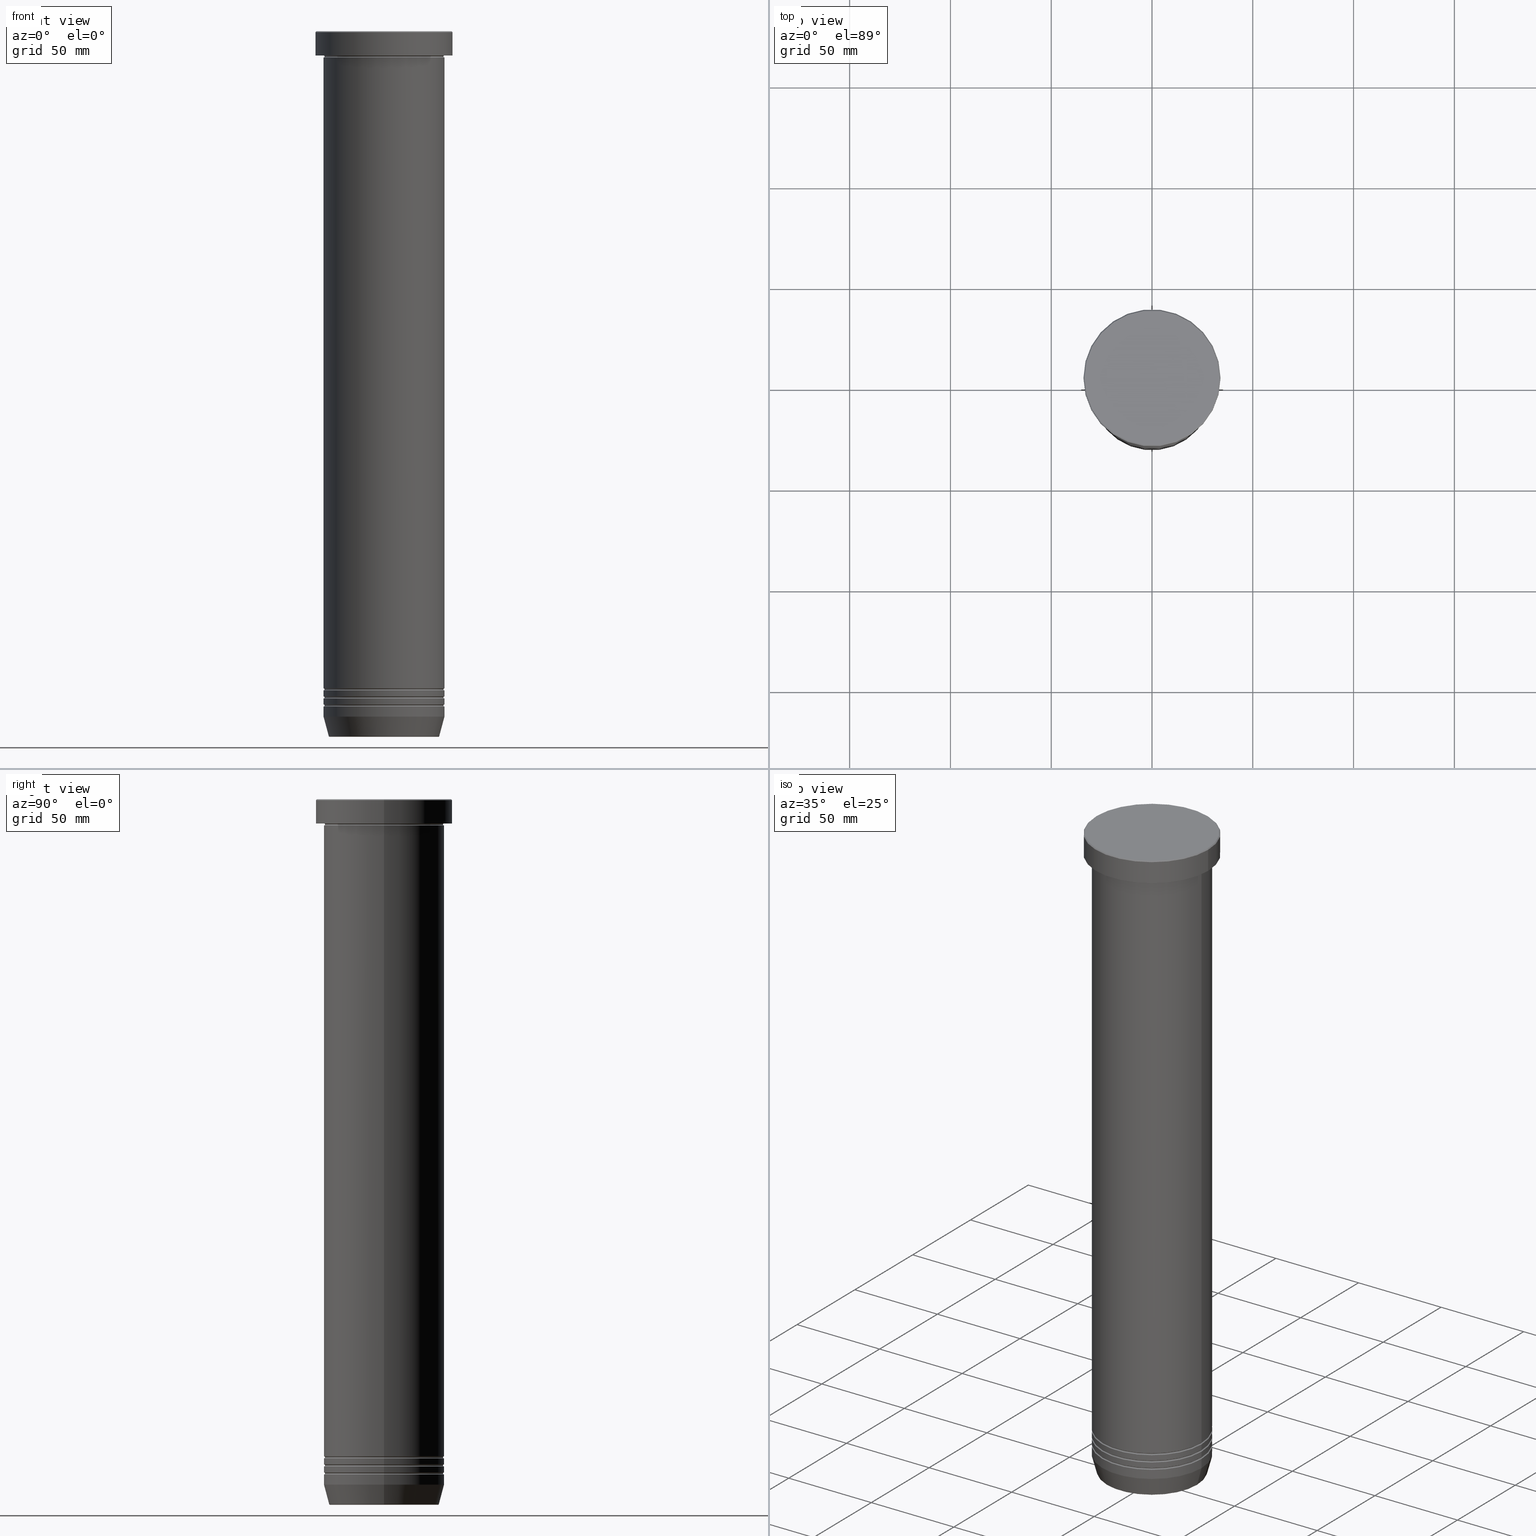
[diagram: canonical four-view strip — front | top / right | iso, engineering-drawing reading convention]
A machine part, canonical four-view strip (front | top / right | iso — engineering-drawing reading convention). The complete STEP part file that produces these views, byte-faithful:
ISO-10303-21;
HEADER;
FILE_DESCRIPTION (( 'STEP AP203' ),
    '1' );
FILE_NAME ('3ae8.STEP',
    '2024-01-02T17:03:54',
    ( '' ),
    ( '' ),
    'SwSTEP 2.0',
    'SolidWorks 2019',
    '' );
FILE_SCHEMA (( 'CONFIG_CONTROL_DESIGN' ));
ENDSEC;

DATA;
#1 = EDGE_CURVE ( 'NONE', #490, #712, #599, .T. ) ;
#2 = DIRECTION ( 'NONE',  ( -0.000000000000000000, -0.000000000000000000, 1.000000000000000000 ) ) ;
#3 = FACE_OUTER_BOUND ( 'NONE', #152, .T. ) ;
#4 = ORIENTED_EDGE ( 'NONE', *, *, #162, .F. ) ;
#5 = CARTESIAN_POINT ( 'NONE',  ( 0.000000000000000000, 0.000000000000000000, -70.00000000000000000 ) ) ;
#6 = CARTESIAN_POINT ( 'NONE',  ( 0.000000000000000000, 0.000000000000000000, -335.0000000000000568 ) ) ;
#7 = EDGE_LOOP ( 'NONE', ( #577, #439 ) ) ;
#8 = CYLINDRICAL_SURFACE ( 'NONE', #266, 30.00000000000000000 ) ;
#9 = CARTESIAN_POINT ( 'NONE',  ( -29.49999999999999289, 3.643324227463374602E-15, -334.5000000000000568 ) ) ;
#10 = APPROVAL ( #196, 'NEUR�EN�' ) ;
#11 = AXIS2_PLACEMENT_3D ( 'NONE', #978, #327, #244 ) ;
#12 = EDGE_LOOP ( 'NONE', ( #331, #18, #608, #719 ) ) ;
#13 = AXIS2_PLACEMENT_3D ( 'NONE', #355, #115, #438 ) ;
#14 = DIRECTION ( 'NONE',  ( -0.000000000000000000, -0.000000000000000000, 1.000000000000000000 ) ) ;
#15 = EDGE_CURVE ( 'NONE', #427, #441, #369, .T. ) ;
#16 = CARTESIAN_POINT ( 'NONE',  ( 26.93684458169928320, 0.000000000000000000, -349.5000000000000568 ) ) ;
#17 = CIRCLE ( 'NONE', #89, 33.50000000000000000 ) ;
#18 = ORIENTED_EDGE ( 'NONE', *, *, #390, .T. ) ;
#19 = FACE_BOUND ( 'NONE', #919, .T. ) ;
#20 = DIRECTION ( 'NONE',  ( -0.000000000000000000, -0.000000000000000000, 1.000000000000000000 ) ) ;
#21 = ORIENTED_EDGE ( 'NONE', *, *, #730, .F. ) ;
#22 = DIRECTION ( 'NONE',  ( 0.000000000000000000, 0.000000000000000000, -1.000000000000000000 ) ) ;
#23 = DIRECTION ( 'NONE',  ( -0.000000000000000000, -0.000000000000000000, 1.000000000000000000 ) ) ;
#24 = VERTEX_POINT ( 'NONE', #276 ) ;
#25 = CARTESIAN_POINT ( 'NONE',  ( 29.99999999999999289, 3.673940397442058389E-15, -334.5000000000000568 ) ) ;
#26 = CONICAL_SURFACE ( 'NONE', #99, 27.32050807568876039, 0.2617993877991502405 ) ;
#27 = CIRCLE ( 'NONE', #267, 30.00000000000000000 ) ;
#28 = AXIS2_PLACEMENT_3D ( 'NONE', #860, #959, #217 ) ;
#29 = CARTESIAN_POINT ( 'NONE',  ( 0.000000000000000000, 0.000000000000000000, -330.5000000000000568 ) ) ;
#30 = ADVANCED_FACE ( 'NONE', ( #580 ), #854, .T. ) ;
#31 = APPROVAL_DATE_TIME ( #842, #10 ) ;
#32 = ORIENTED_EDGE ( 'NONE', *, *, #825, .F. ) ;
#33 = FACE_OUTER_BOUND ( 'NONE', #92, .T. ) ;
#34 = DIRECTION ( 'NONE',  ( -1.000000000000000000, 0.000000000000000000, 0.000000000000000000 ) ) ;
#35 = APPROVAL_PERSON_ORGANIZATION ( #918, #461, #1000 ) ;
#36 = PRODUCT_DEFINITION_FORMATION_WITH_SPECIFIED_SOURCE ( 'LIBOVOLN�', '', #195, .NOT_KNOWN. ) ;
#37 = DIRECTION ( 'NONE',  ( 0.000000000000000000, 0.000000000000000000, -1.000000000000000000 ) ) ;
#38 = EDGE_LOOP ( 'NONE', ( #247, #983, #493, #85 ) ) ;
#39 = CARTESIAN_POINT ( 'NONE',  ( 0.000000000000000000, 0.000000000000000000, -330.5000000000000568 ) ) ;
#40 = EDGE_CURVE ( 'NONE', #57, #1033, #269, .T. ) ;
#41 = ORIENTED_EDGE ( 'NONE', *, *, #335, .T. ) ;
#42 = APPLICATION_CONTEXT ( 'configuration controlled 3d designs of mechanical parts and assemblies' ) ;
#43 = LINE ( 'NONE', #684, #1040 ) ;
#44 = EDGE_CURVE ( 'NONE', #733, #170, #746, .T. ) ;
#45 = ORIENTED_EDGE ( 'NONE', *, *, #820, .F. ) ;
#46 = CIRCLE ( 'NONE', #301, 0.5000000000000004441 ) ;
#47 = CARTESIAN_POINT ( 'NONE',  ( 0.000000000000000000, 3.469446951953614189E-15, -70.00000000000000000 ) ) ;
#48 = AXIS2_PLACEMENT_3D ( 'NONE', #39, #624, #129 ) ;
#49 = DIRECTION ( 'NONE',  ( 1.224646799147353207E-16, 1.000000000000000000, 0.000000000000000000 ) ) ;
#50 = AXIS2_PLACEMENT_3D ( 'NONE', #93, #1060, #644 ) ;
#51 = CALENDAR_DATE ( 2024, 2, 1 ) ;
#52 = DIRECTION ( 'NONE',  ( 1.000000000000000000, 0.000000000000000000, 0.000000000000000000 ) ) ;
#53 = DIRECTION ( 'NONE',  ( -0.000000000000000000, -0.000000000000000000, 1.000000000000000000 ) ) ;
#54 = CARTESIAN_POINT ( 'NONE',  ( 30.00000000000000000, 3.673940397442059178E-15, -12.49999999999999645 ) ) ;
#55 = EDGE_LOOP ( 'NONE', ( #128, #748, #1059, #606 ) ) ;
#56 = CARTESIAN_POINT ( 'NONE',  ( 0.000000000000000000, 0.000000000000000000, -12.49999999999999645 ) ) ;
#57 = VERTEX_POINT ( 'NONE', #923 ) ;
#58 = CARTESIAN_POINT ( 'NONE',  ( -34.00000000000000000, 4.163799117101000559E-15, 0.000000000000000000 ) ) ;
#59 = CARTESIAN_POINT ( 'NONE',  ( -29.99999999999999645, 3.673940397442058389E-15, -330.0000000000000568 ) ) ;
#60 = EDGE_CURVE ( 'NONE', #835, #131, #940, .T. ) ;
#61 = EDGE_LOOP ( 'NONE', ( #1049, #120, #425, #464 ) ) ;
#62 = DIRECTION ( 'NONE',  ( -0.000000000000000000, -0.000000000000000000, 1.000000000000000000 ) ) ;
#63 = VERTEX_POINT ( 'NONE', #756 ) ;
#64 = FACE_OUTER_BOUND ( 'NONE', #641, .T. ) ;
#65 = CARTESIAN_POINT ( 'NONE',  ( 0.000000000000000000, 0.000000000000000000, -349.5000000000000568 ) ) ;
#66 = TOROIDAL_SURFACE ( 'NONE', #366, 29.99999999999999289, 0.5000000000000000000 ) ;
#67 = CIRCLE ( 'NONE', #498, 0.5000000000000004441 ) ;
#68 = VERTEX_POINT ( 'NONE', #935 ) ;
#69 = CARTESIAN_POINT ( 'NONE',  ( 34.00000000000000000, 0.000000000000000000, -11.99999999999999645 ) ) ;
#70 = ORIENTED_EDGE ( 'NONE', *, *, #743, .F. ) ;
#71 = FACE_OUTER_BOUND ( 'NONE', #290, .T. ) ;
#72 = AXIS2_PLACEMENT_3D ( 'NONE', #925, #913, #760 ) ;
#73 = ORIENTED_EDGE ( 'NONE', *, *, #126, .F. ) ;
#74 = DIRECTION ( 'NONE',  ( -1.000000000000000000, 0.000000000000000000, 0.000000000000000000 ) ) ;
#75 = EDGE_CURVE ( 'NONE', #1054, #647, #596, .T. ) ;
#76 = ORIENTED_EDGE ( 'NONE', *, *, #605, .T. ) ;
#77 = DIRECTION ( 'NONE',  ( -0.000000000000000000, -0.000000000000000000, 1.000000000000000000 ) ) ;
#78 = DIRECTION ( 'NONE',  ( 0.000000000000000000, 0.000000000000000000, -1.000000000000000000 ) ) ;
#79 = FACE_OUTER_BOUND ( 'NONE', #336, .T. ) ;
#80 = ORIENTED_EDGE ( 'NONE', *, *, #1, .T. ) ;
#81 = DIRECTION ( 'NONE',  ( 1.000000000000000000, 0.000000000000000000, 0.000000000000000000 ) ) ;
#82 = ADVANCED_FACE ( 'NONE', ( #205 ), #189, .T. ) ;
#83 = CONICAL_SURFACE ( 'NONE', #667, 33.50000000000000000, 0.7853981633974552734 ) ;
#84 = AXIS2_PLACEMENT_3D ( 'NONE', #102, #14, #937 ) ;
#85 = ORIENTED_EDGE ( 'NONE', *, *, #510, .F. ) ;
#86 = ORIENTED_EDGE ( 'NONE', *, *, #816, .F. ) ;
#87 = FACE_OUTER_BOUND ( 'NONE', #186, .T. ) ;
#88 = CIRCLE ( 'NONE', #704, 0.5000000000000004441 ) ;
#89 = AXIS2_PLACEMENT_3D ( 'NONE', #818, #642, #566 ) ;
#90 = DIRECTION ( 'NONE',  ( -1.000000000000000000, 0.000000000000000000, 0.000000000000000000 ) ) ;
#91 = CYLINDRICAL_SURFACE ( 'NONE', #907, 30.00000000000000000 ) ;
#92 = EDGE_LOOP ( 'NONE', ( #827, #772, #651, #716 ) ) ;
#93 = CARTESIAN_POINT ( 'NONE',  ( 0.000000000000000000, 0.000000000000000000, -12.49999999999999645 ) ) ;
#94 = DIRECTION ( 'NONE',  ( 1.000000000000000000, 0.000000000000000000, 0.000000000000000000 ) ) ;
#95 = ADVANCED_FACE ( 'NONE', ( #288 ), #153, .F. ) ;
#96 = DIRECTION ( 'NONE',  ( 1.000000000000000000, 0.000000000000000000, 0.000000000000000000 ) ) ;
#97 = ORIENTED_EDGE ( 'NONE', *, *, #650, .T. ) ;
#98 = AXIS2_PLACEMENT_3D ( 'NONE', #54, #868, #298 ) ;
#99 = AXIS2_PLACEMENT_3D ( 'NONE', #786, #895, #890 ) ;
#100 = EDGE_LOOP ( 'NONE', ( #182, #611, #546, #795 ) ) ;
#101 = AXIS2_PLACEMENT_3D ( 'NONE', #749, #22, #350 ) ;
#102 = CARTESIAN_POINT ( 'NONE',  ( 0.000000000000000000, 0.000000000000000000, -70.00000000000000000 ) ) ;
#103 = AXIS2_PLACEMENT_3D ( 'NONE', #982, #626, #74 ) ;
#104 = CIRCLE ( 'NONE', #970, 0.5000000000000004441 ) ;
#105 = DIRECTION ( 'NONE',  ( 1.000000000000000000, 0.000000000000000000, 0.000000000000000000 ) ) ;
#106 = EDGE_CURVE ( 'NONE', #213, #957, #737, .T. ) ;
#107 = ORIENTED_EDGE ( 'NONE', *, *, #282, .T. ) ;
#108 = DIRECTION ( 'NONE',  ( -0.000000000000000000, -0.000000000000000000, 1.000000000000000000 ) ) ;
#109 = CARTESIAN_POINT ( 'NONE',  ( 0.000000000000000000, 0.000000000000000000, -11.99999999999999645 ) ) ;
#110 = ORIENTED_EDGE ( 'NONE', *, *, #629, .F. ) ;
#111 = DIRECTION ( 'NONE',  ( 1.000000000000000000, 0.000000000000000000, 0.000000000000000000 ) ) ;
#112 = ADVANCED_FACE ( 'NONE', ( #604 ), #751, .T. ) ;
#113 = DIRECTION ( 'NONE',  ( 0.000000000000000000, 0.000000000000000000, -1.000000000000000000 ) ) ;
#114 = ORIENTED_EDGE ( 'NONE', *, *, #142, .F. ) ;
#115 = DIRECTION ( 'NONE',  ( -0.000000000000000000, -0.000000000000000000, 1.000000000000000000 ) ) ;
#116 = AXIS2_PLACEMENT_3D ( 'NONE', #1047, #693, #293 ) ;
#117 = AXIS2_PLACEMENT_3D ( 'NONE', #540, #533, #610 ) ;
#118 = DIRECTION ( 'NONE',  ( 0.000000000000000000, 0.000000000000000000, -1.000000000000000000 ) ) ;
#119 = TOROIDAL_SURFACE ( 'NONE', #419, 30.00000000000000000, 0.5000000000000000000 ) ;
#120 = ORIENTED_EDGE ( 'NONE', *, *, #992, .T. ) ;
#121 = CARTESIAN_POINT ( 'NONE',  ( 29.99999999999999289, 0.000000000000000000, -326.5000000000000568 ) ) ;
#122 = VERTEX_POINT ( 'NONE', #797 ) ;
#123 = CARTESIAN_POINT ( 'NONE',  ( 0.000000000000000000, 0.000000000000000000, 0.000000000000000000 ) ) ;
#124 = EDGE_CURVE ( 'NONE', #441, #379, #694, .T. ) ;
#125 = PERSON_AND_ORGANIZATION ( #277, #294 ) ;
#126 = EDGE_CURVE ( 'NONE', #712, #835, #619, .T. ) ;
#127 = FACE_OUTER_BOUND ( 'NONE', #567, .T. ) ;
#128 = ORIENTED_EDGE ( 'NONE', *, *, #431, .F. ) ;
#129 = DIRECTION ( 'NONE',  ( 1.000000000000000000, 0.000000000000000000, 0.000000000000000000 ) ) ;
#130 = PERSON_AND_ORGANIZATION_ROLE ( 'design_supplier' ) ;
#131 = VERTEX_POINT ( 'NONE', #316 ) ;
#132 = DIRECTION ( 'NONE',  ( 0.000000000000000000, -0.000000000000000000, 1.000000000000000000 ) ) ;
#133 = EDGE_CURVE ( 'NONE', #647, #1054, #1043, .T. ) ;
#134 = ORIENTED_EDGE ( 'NONE', *, *, #569, .F. ) ;
#135 = AXIS2_PLACEMENT_3D ( 'NONE', #385, #211, #618 ) ;
#136 = DIRECTION ( 'NONE',  ( 1.000000000000000000, 0.000000000000000000, 0.000000000000000000 ) ) ;
#137 = CIRCLE ( 'NONE', #720, 34.00000000000000000 ) ;
#138 = CLOSED_SHELL ( 'NONE', ( #767, #856, #1022, #112, #962, #893, #879, #321, #750, #904, #149, #328, #534 ) ) ;
#139 = SHAPE_DEFINITION_REPRESENTATION ( #333, #640 ) ;
#140 = ORIENTED_EDGE ( 'NONE', *, *, #450, .F. ) ;
#141 = DIRECTION ( 'NONE',  ( 1.000000000000000000, 0.000000000000000000, 0.000000000000000000 ) ) ;
#142 = EDGE_CURVE ( 'NONE', #170, #1033, #630, .T. ) ;
#143 = VERTEX_POINT ( 'NONE', #542 ) ;
#144 = LINE ( 'NONE', #541, #597 ) ;
#145 = DIRECTION ( 'NONE',  ( 1.000000000000000000, 0.000000000000000000, 0.000000000000000000 ) ) ;
#146 = ORIENTED_EDGE ( 'NONE', *, *, #172, .F. ) ;
#147 = FACE_OUTER_BOUND ( 'NONE', #220, .T. ) ;
#148 = CARTESIAN_POINT ( 'NONE',  ( 26.93684458169928320, 0.000000000000000000, -350.0000000000000568 ) ) ;
#149 = ADVANCED_FACE ( 'NONE', ( #71 ), #119, .F. ) ;
#150 = ORIENTED_EDGE ( 'NONE', *, *, #707, .T. ) ;
#151 = DIRECTION ( 'NONE',  ( -0.7071067811865524577, 0.000000000000000000, -0.7071067811865426878 ) ) ;
#152 = EDGE_LOOP ( 'NONE', ( #552, #539, #535, #354 ) ) ;
#153 = TOROIDAL_SURFACE ( 'NONE', #240, 29.99999999999999289, 0.5000000000000000000 ) ;
#154 = TOROIDAL_SURFACE ( 'NONE', #135, 29.99999999999999289, 0.5000000000000000000 ) ;
#155 = CIRCLE ( 'NONE', #900, 27.41980749484381263 ) ;
#156 = ORIENTED_EDGE ( 'NONE', *, *, #980, .F. ) ;
#157 = CYLINDRICAL_SURFACE ( 'NONE', #373, 29.99999999999999645 ) ;
#158 = AXIS2_PLACEMENT_3D ( 'NONE', #278, #434, #665 ) ;
#159 = VERTEX_POINT ( 'NONE', #531 ) ;
#160 = VERTEX_POINT ( 'NONE', #59 ) ;
#161 = CARTESIAN_POINT ( 'NONE',  ( -30.00000000000000000, 3.673940397442059178E-15, 0.000000000000000000 ) ) ;
#162 = EDGE_CURVE ( 'NONE', #24, #477, #256, .T. ) ;
#163 = ORIENTED_EDGE ( 'NONE', *, *, #1055, .T. ) ;
#164 = ORIENTED_EDGE ( 'NONE', *, *, #404, .T. ) ;
#165 = CYLINDRICAL_SURFACE ( 'NONE', #530, 34.00000000000000000 ) ;
#166 = EDGE_LOOP ( 'NONE', ( #866, #455 ) ) ;
#167 = CIRCLE ( 'NONE', #755, 34.00000000000000000 ) ;
#168 = AXIS2_PLACEMENT_3D ( 'NONE', #692, #380, #141 ) ;
#169 = FACE_OUTER_BOUND ( 'NONE', #61, .T. ) ;
#170 = VERTEX_POINT ( 'NONE', #458 ) ;
#171 = DIRECTION ( 'NONE',  ( -0.000000000000000000, -0.000000000000000000, 1.000000000000000000 ) ) ;
#172 = EDGE_CURVE ( 'NONE', #490, #647, #741, .T. ) ;
#173 = EDGE_CURVE ( 'NONE', #160, #180, #549, .T. ) ;
#174 = UNCERTAINTY_MEASURE_WITH_UNIT (LENGTH_MEASURE( 1.000000000000000082E-05 ), #416, 'distance_accuracy_value', 'NONE');
#175 = CALENDAR_DATE ( 2024, 2, 1 ) ;
#176 = ORIENTED_EDGE ( 'NONE', *, *, #865, .T. ) ;
#177 = DIRECTION ( 'NONE',  ( 1.000000000000000000, 0.000000000000000000, 0.000000000000000000 ) ) ;
#178 = CARTESIAN_POINT ( 'NONE',  ( -30.00000000000000000, 0.000000000000000000, -12.49999999999999645 ) ) ;
#179 = APPROVAL_ROLE ( '' ) ;
#180 = VERTEX_POINT ( 'NONE', #525 ) ;
#181 = CARTESIAN_POINT ( 'NONE',  ( 0.000000000000000000, 0.000000000000000000, -350.0000000000000568 ) ) ;
#182 = ORIENTED_EDGE ( 'NONE', *, *, #390, .F. ) ;
#183 = CC_DESIGN_PERSON_AND_ORGANIZATION_ASSIGNMENT ( #352, #661, ( #195 ) ) ;
#184 = CALENDAR_DATE ( 2024, 2, 1 ) ;
#185 = AXIS2_PLACEMENT_3D ( 'NONE', #956, #230, #456 ) ;
#186 = EDGE_LOOP ( 'NONE', ( #592, #808, #407, #114 ) ) ;
#187 = CIRCLE ( 'NONE', #448, 30.00000000000000000 ) ;
#188 = LINE ( 'NONE', #1002, #884 ) ;
#189 = CONICAL_SURFACE ( 'NONE', #903, 27.32050807568876039, 0.2617993877991502405 ) ;
#190 = AXIS2_PLACEMENT_3D ( 'NONE', #233, #392, #246 ) ;
#191 = DIRECTION ( 'NONE',  ( 1.000000000000000000, 0.000000000000000000, 0.000000000000000000 ) ) ;
#192 = ORIENTED_EDGE ( 'NONE', *, *, #551, .F. ) ;
#193 = CARTESIAN_POINT ( 'NONE',  ( 29.49999999999999289, 0.000000000000000000, -334.5000000000000568 ) ) ;
#194 = ADVANCED_FACE ( 'NONE', ( #444 ), #538, .T. ) ;
#195 = PRODUCT ( '3ae8', '3ae8', '', ( #345 ) ) ;
#196 = APPROVAL_STATUS ( 'not_yet_approved' ) ;
#197 = ORIENTED_EDGE ( 'NONE', *, *, #743, .T. ) ;
#198 = DIRECTION ( 'NONE',  ( 1.000000000000000000, 0.000000000000000000, 0.000000000000000000 ) ) ;
#199 = EDGE_CURVE ( 'NONE', #57, #1054, #104, .T. ) ;
#200 = DIRECTION ( 'NONE',  ( -0.000000000000000000, -0.000000000000000000, 1.000000000000000000 ) ) ;
#201 = DIRECTION ( 'NONE',  ( 1.000000000000000000, 0.000000000000000000, 0.000000000000000000 ) ) ;
#202 = TOROIDAL_SURFACE ( 'NONE', #254, 30.00000000000000000, 0.5000000000000000000 ) ;
#203 = EDGE_CURVE ( 'NONE', #712, #1054, #495, .T. ) ;
#204 = CC_DESIGN_APPROVAL ( #250, ( #941 ) ) ;
#205 = FACE_OUTER_BOUND ( 'NONE', #12, .T. ) ;
#206 = ADVANCED_FACE ( 'NONE', ( #690 ), #382, .T. ) ;
#207 = SECURITY_CLASSIFICATION_LEVEL ( 'unclassified' ) ;
#208 = VERTEX_POINT ( 'NONE', #787 ) ;
#209 = FACE_OUTER_BOUND ( 'NONE', #7, .T. ) ;
#210 = ORIENTED_EDGE ( 'NONE', *, *, #126, .T. ) ;
#211 = DIRECTION ( 'NONE',  ( -0.000000000000000000, -0.000000000000000000, 1.000000000000000000 ) ) ;
#212 = ADVANCED_FACE ( 'NONE', ( #873 ), #468, .T. ) ;
#213 = VERTEX_POINT ( 'NONE', #791 ) ;
#214 = CARTESIAN_POINT ( 'NONE',  ( 0.000000000000000000, 30.00000000000000000, -70.00000000000000000 ) ) ;
#215 = ORIENTED_EDGE ( 'NONE', *, *, #980, .T. ) ;
#216 = CARTESIAN_POINT ( 'NONE',  ( 29.99999999999999289, 0.000000000000000000, -326.0000000000000568 ) ) ;
#217 = DIRECTION ( 'NONE',  ( 1.000000000000000000, 0.000000000000000000, 0.000000000000000000 ) ) ;
#218 = ORIENTED_EDGE ( 'NONE', *, *, #629, .T. ) ;
#219 = FACE_OUTER_BOUND ( 'NONE', #523, .T. ) ;
#220 = EDGE_LOOP ( 'NONE', ( #475, #727, #869, #413 ) ) ;
#221 = CIRCLE ( 'NONE', #1056, 30.00000000000000000 ) ;
#222 = CARTESIAN_POINT ( 'NONE',  ( 0.000000000000000000, 0.000000000000000000, -330.5000000000000568 ) ) ;
#223 = AXIS2_PLACEMENT_3D ( 'NONE', #587, #575, #927 ) ;
#224 = DIRECTION ( 'NONE',  ( -0.000000000000000000, -0.000000000000000000, 1.000000000000000000 ) ) ;
#225 = AXIS2_PLACEMENT_3D ( 'NONE', #711, #1053, #573 ) ;
#226 = CARTESIAN_POINT ( 'NONE',  ( -30.00000000000000355, 3.673940397442059967E-15, -331.0000000000000568 ) ) ;
#227 = EDGE_CURVE ( 'NONE', #292, #318, #46, .T. ) ;
#228 = DIRECTION ( 'NONE',  ( -0.000000000000000000, -0.000000000000000000, 1.000000000000000000 ) ) ;
#229 = DIRECTION ( 'NONE',  ( -0.000000000000000000, -0.000000000000000000, 1.000000000000000000 ) ) ;
#230 = DIRECTION ( 'NONE',  ( 1.224646799147353207E-16, 1.000000000000000000, 0.000000000000000000 ) ) ;
#231 = CARTESIAN_POINT ( 'NONE',  ( -29.99999999999999289, 3.673940397442058389E-15, -334.5000000000000568 ) ) ;
#232 = EDGE_LOOP ( 'NONE', ( #234, #583, #966, #705 ) ) ;
#233 = CARTESIAN_POINT ( 'NONE',  ( 0.000000000000000000, 0.000000000000000000, -326.5000000000000568 ) ) ;
#234 = ORIENTED_EDGE ( 'NONE', *, *, #411, .F. ) ;
#235 = CARTESIAN_POINT ( 'NONE',  ( 0.000000000000000000, 0.000000000000000000, 0.000000000000000000 ) ) ;
#236 = CARTESIAN_POINT ( 'NONE',  ( 0.000000000000000000, 0.000000000000000000, -12.49999999999999645 ) ) ;
#237 = AXIS2_PLACEMENT_3D ( 'NONE', #728, #337, #314 ) ;
#238 = CIRCLE ( 'NONE', #84, 30.00000000000000000 ) ;
#239 = EDGE_CURVE ( 'NONE', #159, #429, #654, .T. ) ;
#240 = AXIS2_PLACEMENT_3D ( 'NONE', #29, #503, #764 ) ;
#241 = DIRECTION ( 'NONE',  ( -1.000000000000000000, 0.000000000000000000, 0.000000000000000000 ) ) ;
#242 = ORIENTED_EDGE ( 'NONE', *, *, #378, .T. ) ;
#243 = DIRECTION ( 'NONE',  ( -0.000000000000000000, -0.000000000000000000, 1.000000000000000000 ) ) ;
#244 = DIRECTION ( 'NONE',  ( 1.000000000000000000, 0.000000000000000000, 0.000000000000000000 ) ) ;
#245 = ORIENTED_EDGE ( 'NONE', *, *, #203, .F. ) ;
#246 = DIRECTION ( 'NONE',  ( 1.000000000000000000, 0.000000000000000000, 0.000000000000000000 ) ) ;
#247 = ORIENTED_EDGE ( 'NONE', *, *, #696, .T. ) ;
#248 = DIRECTION ( 'NONE',  ( 1.000000000000000000, 0.000000000000000000, 0.000000000000000000 ) ) ;
#249 = CARTESIAN_POINT ( 'NONE',  ( -34.00000000000000000, 4.163799117101000559E-15, -0.4999999999999935052 ) ) ;
#250 = APPROVAL ( #691, 'NEUR�EN�' ) ;
#251 = ORIENTED_EDGE ( 'NONE', *, *, #865, .F. ) ;
#252 = DIRECTION ( 'NONE',  ( 1.000000000000000000, 0.000000000000000000, 0.000000000000000000 ) ) ;
#253 = AXIS2_PLACEMENT_3D ( 'NONE', #763, #360, #676 ) ;
#254 = AXIS2_PLACEMENT_3D ( 'NONE', #56, #37, #768 ) ;
#255 = CARTESIAN_POINT ( 'NONE',  ( -29.99999999999999289, 3.673940397442058389E-15, -326.5000000000000568 ) ) ;
#256 = CIRCLE ( 'NONE', #98, 0.5000000000000004441 ) ;
#257 = ORIENTED_EDGE ( 'NONE', *, *, #450, .T. ) ;
#258 = DIRECTION ( 'NONE',  ( -0.000000000000000000, -1.000000000000000000, -0.000000000000000000 ) ) ;
#259 = ORIENTED_EDGE ( 'NONE', *, *, #1004, .F. ) ;
#260 = DIRECTION ( 'NONE',  ( -0.000000000000000000, -0.000000000000000000, 1.000000000000000000 ) ) ;
#261 = CARTESIAN_POINT ( 'NONE',  ( 0.000000000000000000, 0.000000000000000000, -326.5000000000000568 ) ) ;
#262 = VERTEX_POINT ( 'NONE', #911 ) ;
#263 = ORIENTED_EDGE ( 'NONE', *, *, #358, .T. ) ;
#264 = DIRECTION ( 'NONE',  ( 0.000000000000000000, 0.000000000000000000, -1.000000000000000000 ) ) ;
#265 = ADVANCED_FACE ( 'NONE', ( #824 ), #320, .F. ) ;
#266 = AXIS2_PLACEMENT_3D ( 'NONE', #474, #736, #559 ) ;
#267 = AXIS2_PLACEMENT_3D ( 'NONE', #828, #108, #198 ) ;
#268 = ORIENTED_EDGE ( 'NONE', *, *, #1031, .T. ) ;
#269 = CIRCLE ( 'NONE', #406, 30.00000000000000000 ) ;
#270 = CARTESIAN_POINT ( 'NONE',  ( 0.000000000000000000, 0.000000000000000000, -340.0000000000000000 ) ) ;
#271 = DIRECTION ( 'NONE',  ( -0.000000000000000000, -0.000000000000000000, 1.000000000000000000 ) ) ;
#272 = DIRECTION ( 'NONE',  ( -0.000000000000000000, -0.000000000000000000, 1.000000000000000000 ) ) ;
#273 = EDGE_LOOP ( 'NONE', ( #631, #97, #300, #349 ) ) ;
#274 = DIRECTION ( 'NONE',  ( -1.000000000000000000, -1.224646799147349509E-16, 0.000000000000000000 ) ) ;
#275 = CYLINDRICAL_SURFACE ( 'NONE', #921, 34.00000000000000000 ) ;
#276 = CARTESIAN_POINT ( 'NONE',  ( 29.50000000000000000, 0.000000000000000000, -12.49999999999999645 ) ) ;
#277 = PERSON ( 'NEUR�EN�', 'NEUR�EN�', 'NEUR�EN�', ('NEUR�EN�'), ('NEUR�EN�'), ('NEUR�EN�') ) ;
#278 = CARTESIAN_POINT ( 'NONE',  ( 0.000000000000000000, 0.000000000000000000, -0.4999999999999935052 ) ) ;
#279 = CC_DESIGN_DATE_AND_TIME_ASSIGNMENT ( #695, #863, ( #941 ) ) ;
#280 = ORIENTED_EDGE ( 'NONE', *, *, #411, .T. ) ;
#281 = DIRECTION ( 'NONE',  ( 1.000000000000000000, 0.000000000000000000, 0.000000000000000000 ) ) ;
#282 = EDGE_CURVE ( 'NONE', #394, #733, #497, .T. ) ;
#283 = DIRECTION ( 'NONE',  ( 1.000000000000000000, 0.000000000000000000, 0.000000000000000000 ) ) ;
#284 = CARTESIAN_POINT ( 'NONE',  ( 0.000000000000000000, 0.000000000000000000, -349.6294095225512706 ) ) ;
#285 = AXIS2_PLACEMENT_3D ( 'NONE', #261, #985, #94 ) ;
#286 = DIRECTION ( 'NONE',  ( -0.000000000000000000, -0.000000000000000000, 1.000000000000000000 ) ) ;
#287 = ADVANCED_FACE ( 'NONE', ( #715 ), #547, .F. ) ;
#288 = FACE_OUTER_BOUND ( 'NONE', #813, .T. ) ;
#289 = AXIS2_PLACEMENT_3D ( 'NONE', #1005, #930, #105 ) ;
#290 = EDGE_LOOP ( 'NONE', ( #45, #134, #242, #268 ) ) ;
#291 = CARTESIAN_POINT ( 'NONE',  ( 0.000000000000000000, 0.000000000000000000, -331.0000000000000568 ) ) ;
#292 = VERTEX_POINT ( 'NONE', #905 ) ;
#293 = DIRECTION ( 'NONE',  ( 1.000000000000000000, 0.000000000000000000, 0.000000000000000000 ) ) ;
#294 = ORGANIZATION ( 'NEUR�EN�', 'NEUR�EN�', '' ) ;
#295 = EDGE_LOOP ( 'NONE', ( #70, #889, #343, #981 ) ) ;
#296 = DIRECTION ( 'NONE',  ( -1.000000000000000000, 0.000000000000000000, 0.000000000000000000 ) ) ;
#297 = ORIENTED_EDGE ( 'NONE', *, *, #731, .F. ) ;
#298 = DIRECTION ( 'NONE',  ( -1.000000000000000000, -1.224646799147349509E-16, 0.000000000000000000 ) ) ;
#299 = DIRECTION ( 'NONE',  ( 0.000000000000000000, 0.000000000000000000, -1.000000000000000000 ) ) ;
#300 = ORIENTED_EDGE ( 'NONE', *, *, #757, .T. ) ;
#301 = AXIS2_PLACEMENT_3D ( 'NONE', #739, #338, #997 ) ;
#302 = DIRECTION ( 'NONE',  ( 0.7071067811865524577, 8.659560562354994488E-17, -0.7071067811865426878 ) ) ;
#303 = CIRCLE ( 'NONE', #814, 0.5000000000000004441 ) ;
#304 = DIRECTION ( 'NONE',  ( -0.000000000000000000, -0.000000000000000000, 1.000000000000000000 ) ) ;
#305 = AXIS2_PLACEMENT_3D ( 'NONE', #939, #681, #432 ) ;
#306 = VERTEX_POINT ( 'NONE', #637 ) ;
#307 = CARTESIAN_POINT ( 'NONE',  ( 0.000000000000000000, 0.000000000000000000, -326.0000000000000568 ) ) ;
#308 = ORIENTED_EDGE ( 'NONE', *, *, #239, .T. ) ;
#309 = DIRECTION ( 'NONE',  ( -0.000000000000000000, -0.000000000000000000, 1.000000000000000000 ) ) ;
#310 = VERTEX_POINT ( 'NONE', #555 ) ;
#311 = CYLINDRICAL_SURFACE ( 'NONE', #777, 30.00000000000000000 ) ;
#312 = EDGE_CURVE ( 'NONE', #422, #63, #479, .T. ) ;
#313 = ORIENTED_EDGE ( 'NONE', *, *, #203, .T. ) ;
#314 = DIRECTION ( 'NONE',  ( 1.000000000000000000, 0.000000000000000000, 0.000000000000000000 ) ) ;
#315 = EDGE_CURVE ( 'NONE', #733, #318, #1009, .T. ) ;
#316 = CARTESIAN_POINT ( 'NONE',  ( -29.49999999999999289, 3.643324227463375391E-15, -330.5000000000000568 ) ) ;
#317 = CARTESIAN_POINT ( 'NONE',  ( -33.50000000000000000, 0.000000000000000000, 0.000000000000000000 ) ) ;
#318 = VERTEX_POINT ( 'NONE', #1015 ) ;
#319 = DIRECTION ( 'NONE',  ( 1.000000000000000000, 0.000000000000000000, 0.000000000000000000 ) ) ;
#320 = TOROIDAL_SURFACE ( 'NONE', #285, 29.99999999999999289, 0.5000000000000000000 ) ;
#321 = ADVANCED_FACE ( 'NONE', ( #594 ), #275, .T. ) ;
#322 = VECTOR ( 'NONE', #513, 1000.000000000000000 ) ;
#323 = CIRCLE ( 'NONE', #700, 30.00000000000000000 ) ;
#324 = FACE_OUTER_BOUND ( 'NONE', #917, .T. ) ;
#325 = EDGE_LOOP ( 'NONE', ( #156, #446, #399, #666 ) ) ;
#326 = DIRECTION ( 'NONE',  ( 0.000000000000000000, 0.000000000000000000, -1.000000000000000000 ) ) ;
#327 = DIRECTION ( 'NONE',  ( -0.000000000000000000, -0.000000000000000000, 1.000000000000000000 ) ) ;
#328 = ADVANCED_FACE ( 'NONE', ( #363 ), #511, .F. ) ;
#329 = ORIENTED_EDGE ( 'NONE', *, *, #622, .T. ) ;
#330 = DIRECTION ( 'NONE',  ( -0.000000000000000000, -0.000000000000000000, 1.000000000000000000 ) ) ;
#331 = ORIENTED_EDGE ( 'NONE', *, *, #315, .T. ) ;
#332 = CARTESIAN_POINT ( 'NONE',  ( 0.000000000000000000, 0.000000000000000000, -327.0000000000000568 ) ) ;
#333 = PRODUCT_DEFINITION_SHAPE ( 'NONE', 'NONE',  #779 ) ;
#334 = CARTESIAN_POINT ( 'NONE',  ( 0.000000000000000000, 0.000000000000000000, 0.000000000000000000 ) ) ;
#335 = EDGE_CURVE ( 'NONE', #160, #131, #635, .T. ) ;
#336 = EDGE_LOOP ( 'NONE', ( #73, #163, #176, #708 ) ) ;
#337 = DIRECTION ( 'NONE',  ( -0.000000000000000000, -0.000000000000000000, 1.000000000000000000 ) ) ;
#338 = DIRECTION ( 'NONE',  ( 1.224646799147353207E-16, 1.000000000000000000, 0.000000000000000000 ) ) ;
#339 = AXIS2_PLACEMENT_3D ( 'NONE', #47, #958, #1029 ) ;
#340 = AXIS2_PLACEMENT_3D ( 'NONE', #383, #522, #960 ) ;
#341 = APPROVAL_STATUS ( 'not_yet_approved' ) ;
#342 = VECTOR ( 'NONE', #595, 1000.000000000000114 ) ;
#343 = ORIENTED_EDGE ( 'NONE', *, *, #124, .T. ) ;
#344 = LINE ( 'NONE', #920, #322 ) ;
#345 = MECHANICAL_CONTEXT ( 'NONE', #42, 'mechanical' ) ;
#346 = ORIENTED_EDGE ( 'NONE', *, *, #172, .T. ) ;
#347 = DIRECTION ( 'NONE',  ( -1.000000000000000000, -1.224646799147349509E-16, 0.000000000000000000 ) ) ;
#348 = ADVANCED_FACE ( 'NONE', ( #1020 ), #445, .F. ) ;
#349 = ORIENTED_EDGE ( 'NONE', *, *, #605, .F. ) ;
#350 = DIRECTION ( 'NONE',  ( -1.000000000000000000, 0.000000000000000000, -0.000000000000000000 ) ) ;
#351 = LOCAL_TIME ( 18, 3, 54.00000000000000000, #492 ) ;
#352 = PERSON_AND_ORGANIZATION ( #277, #294 ) ;
#353 = CIRCLE ( 'NONE', #847, 29.99999999999999289 ) ;
#354 = ORIENTED_EDGE ( 'NONE', *, *, #424, .F. ) ;
#355 = CARTESIAN_POINT ( 'NONE',  ( 0.000000000000000000, 0.000000000000000000, -12.49999999999999645 ) ) ;
#356 = EDGE_CURVE ( 'NONE', #122, #131, #564, .T. ) ;
#357 = PERSON_AND_ORGANIZATION ( #277, #294 ) ;
#358 = EDGE_CURVE ( 'NONE', #394, #292, #971, .T. ) ;
#359 = CYLINDRICAL_SURFACE ( 'NONE', #740, 30.00000000000000000 ) ;
#360 = DIRECTION ( 'NONE',  ( 1.224646799147353207E-16, 1.000000000000000000, 0.000000000000000000 ) ) ;
#361 = ORIENTED_EDGE ( 'NONE', *, *, #282, .F. ) ;
#362 = DIRECTION ( 'NONE',  ( 0.000000000000000000, 0.000000000000000000, -1.000000000000000000 ) ) ;
#363 = FACE_OUTER_BOUND ( 'NONE', #710, .T. ) ;
#364 = DIRECTION ( 'NONE',  ( 1.000000000000000000, 0.000000000000000000, 0.000000000000000000 ) ) ;
#365 = VECTOR ( 'NONE', #963, 1000.000000000000000 ) ;
#366 = AXIS2_PLACEMENT_3D ( 'NONE', #222, #529, #457 ) ;
#367 = EDGE_CURVE ( 'NONE', #429, #477, #221, .T. ) ;
#368 = AXIS2_PLACEMENT_3D ( 'NONE', #423, #440, #201 ) ;
#369 = CIRCLE ( 'NONE', #974, 29.99999999999999289 ) ;
#370 = ORIENTED_EDGE ( 'NONE', *, *, #500, .T. ) ;
#371 = CARTESIAN_POINT ( 'NONE',  ( 0.000000000000000000, 0.000000000000000000, -70.00000000000000000 ) ) ;
#372 = CARTESIAN_POINT ( 'NONE',  ( -29.99999999999999645, 3.673940397442059178E-15, 0.000000000000000000 ) ) ;
#373 = AXIS2_PLACEMENT_3D ( 'NONE', #334, #732, #476 ) ;
#374 = CARTESIAN_POINT ( 'NONE',  ( 0.000000000000000000, 0.000000000000000000, -326.5000000000000568 ) ) ;
#375 = CARTESIAN_POINT ( 'NONE',  ( -29.99999999999999289, 3.673940397442059178E-15, -326.0000000000000568 ) ) ;
#376 = LOCAL_TIME ( 18, 3, 54.00000000000000000, #489 ) ;
#377 = DIRECTION ( 'NONE',  ( -1.000000000000000000, 1.224646799147349509E-16, 0.000000000000000000 ) ) ;
#378 = EDGE_CURVE ( 'NONE', #24, #306, #579, .T. ) ;
#379 = VERTEX_POINT ( 'NONE', #452 ) ;
#380 = DIRECTION ( 'NONE',  ( -0.000000000000000000, -0.000000000000000000, 1.000000000000000000 ) ) ;
#381 = ORIENTED_EDGE ( 'NONE', *, *, #312, .F. ) ;
#382 = CYLINDRICAL_SURFACE ( 'NONE', #601, 29.99999999999999645 ) ;
#383 = CARTESIAN_POINT ( 'NONE',  ( 29.99999999999999289, 0.000000000000000000, -330.5000000000000568 ) ) ;
#384 = AXIS2_PLACEMENT_3D ( 'NONE', #612, #1037, #609 ) ;
#385 = CARTESIAN_POINT ( 'NONE',  ( 0.000000000000000000, 0.000000000000000000, -330.5000000000000568 ) ) ;
#386 = AXIS2_PLACEMENT_3D ( 'NONE', #25, #509, #274 ) ;
#387 = DIRECTION ( 'NONE',  ( 1.000000000000000000, 0.000000000000000000, 0.000000000000000000 ) ) ;
#388 = AXIS2_PLACEMENT_3D ( 'NONE', #897, #632, #241 ) ;
#389 = AXIS2_PLACEMENT_3D ( 'NONE', #231, #49, #377 ) ;
#390 = EDGE_CURVE ( 'NONE', #318, #143, #144, .T. ) ;
#391 = CIRCLE ( 'NONE', #924, 0.5000000000000004441 ) ;
#392 = DIRECTION ( 'NONE',  ( -0.000000000000000000, -0.000000000000000000, 1.000000000000000000 ) ) ;
#393 = ADVANCED_FACE ( 'NONE', ( #943 ), #781, .F. ) ;
#394 = VERTEX_POINT ( 'NONE', #148 ) ;
#395 = CARTESIAN_POINT ( 'NONE',  ( 0.000000000000000000, 0.000000000000000000, -11.99999999999999645 ) ) ;
#396 =( GEOMETRIC_REPRESENTATION_CONTEXT ( 3 ) GLOBAL_UNCERTAINTY_ASSIGNED_CONTEXT ( ( #174 ) ) GLOBAL_UNIT_ASSIGNED_CONTEXT ( ( #416, #752, #582 ) ) REPRESENTATION_CONTEXT ( 'NONE', 'WORKASPACE' ) );
#397 = EDGE_LOOP ( 'NONE', ( #562, #1008, #725, #32 ) ) ;
#398 = DIRECTION ( 'NONE',  ( -0.000000000000000000, -0.000000000000000000, 1.000000000000000000 ) ) ;
#399 = ORIENTED_EDGE ( 'NONE', *, *, #60, .T. ) ;
#400 = ORIENTED_EDGE ( 'NONE', *, *, #650, .F. ) ;
#401 = CARTESIAN_POINT ( 'NONE',  ( 29.99999999999999289, 3.673940397442058389E-15, -330.5000000000000568 ) ) ;
#402 = VERTEX_POINT ( 'NONE', #709 ) ;
#403 = CARTESIAN_POINT ( 'NONE',  ( 0.000000000000000000, 0.000000000000000000, -11.99999999999999645 ) ) ;
#404 = EDGE_CURVE ( 'NONE', #422, #806, #697, .T. ) ;
#405 = CIRCLE ( 'NONE', #50, 29.50000000000000000 ) ;
#406 = AXIS2_PLACEMENT_3D ( 'NONE', #590, #271, #283 ) ;
#407 = ORIENTED_EDGE ( 'NONE', *, *, #912, .F. ) ;
#408 = DIRECTION ( 'NONE',  ( 1.000000000000000000, 0.000000000000000000, 0.000000000000000000 ) ) ;
#409 = ORIENTED_EDGE ( 'NONE', *, *, #679, .T. ) ;
#410 = DIRECTION ( 'NONE',  ( -1.000000000000000000, 0.000000000000000000, 0.000000000000000000 ) ) ;
#411 = EDGE_CURVE ( 'NONE', #262, #208, #871, .T. ) ;
#412 = FACE_OUTER_BOUND ( 'NONE', #874, .T. ) ;
#413 = ORIENTED_EDGE ( 'NONE', *, *, #239, .F. ) ;
#414 = DIRECTION ( 'NONE',  ( -0.000000000000000000, -1.000000000000000000, -0.000000000000000000 ) ) ;
#415 = ADVANCED_FACE ( 'NONE', ( #64 ), #154, .F. ) ;
#416 =( LENGTH_UNIT ( ) NAMED_UNIT ( * ) SI_UNIT ( .MILLI., .METRE. ) );
#417 = ORIENTED_EDGE ( 'NONE', *, *, #356, .F. ) ;
#418 = FACE_OUTER_BOUND ( 'NONE', #232, .T. ) ;
#419 = AXIS2_PLACEMENT_3D ( 'NONE', #236, #224, #387 ) ;
#420 = AXIS2_PLACEMENT_3D ( 'NONE', #809, #77, #628 ) ;
#421 = AXIS2_PLACEMENT_3D ( 'NONE', #332, #989, #252 ) ;
#422 = VERTEX_POINT ( 'NONE', #701 ) ;
#423 = CARTESIAN_POINT ( 'NONE',  ( 0.000000000000000000, 0.000000000000000000, 0.000000000000000000 ) ) ;
#424 = EDGE_CURVE ( 'NONE', #957, #208, #685, .T. ) ;
#425 = ORIENTED_EDGE ( 'NONE', *, *, #757, .F. ) ;
#426 = APPROVAL_PERSON_ORGANIZATION ( #1012, #10, #179 ) ;
#427 = VERTEX_POINT ( 'NONE', #375 ) ;
#428 = PLANE ( 'NONE',  #101 ) ;
#429 = VERTEX_POINT ( 'NONE', #466 ) ;
#430 = DIRECTION ( 'NONE',  ( 0.000000000000000000, 0.000000000000000000, -1.000000000000000000 ) ) ;
#431 = EDGE_CURVE ( 'NONE', #213, #988, #796, .T. ) ;
#432 = DIRECTION ( 'NONE',  ( 1.000000000000000000, 0.000000000000000000, 0.000000000000000000 ) ) ;
#433 = AXIS2_PLACEMENT_3D ( 'NONE', #896, #817, #90 ) ;
#434 = DIRECTION ( 'NONE',  ( 0.000000000000000000, 0.000000000000000000, -1.000000000000000000 ) ) ;
#435 = CIRCLE ( 'NONE', #368, 33.50000000000000000 ) ;
#436 = ORIENTED_EDGE ( 'NONE', *, *, #1045, .F. ) ;
#437 = VECTOR ( 'NONE', #877, 1000.000000000000000 ) ;
#438 = DIRECTION ( 'NONE',  ( 1.000000000000000000, 0.000000000000000000, 0.000000000000000000 ) ) ;
#439 = ORIENTED_EDGE ( 'NONE', *, *, #730, .T. ) ;
#440 = DIRECTION ( 'NONE',  ( -0.000000000000000000, -0.000000000000000000, 1.000000000000000000 ) ) ;
#441 = VERTEX_POINT ( 'NONE', #216 ) ;
#442 = CARTESIAN_POINT ( 'NONE',  ( 0.000000000000000000, 3.673940397442060124E-14, -350.0000000000000568 ) ) ;
#443 = DIRECTION ( 'NONE',  ( 1.000000000000000000, 0.000000000000000000, 0.000000000000000000 ) ) ;
#444 = FACE_OUTER_BOUND ( 'NONE', #753, .T. ) ;
#445 = TOROIDAL_SURFACE ( 'NONE', #774, 29.99999999999999289, 0.5000000000000000000 ) ;
#446 = ORIENTED_EDGE ( 'NONE', *, *, #816, .T. ) ;
#447 = DIRECTION ( 'NONE',  ( -1.000000000000000000, 0.000000000000000000, -0.000000000000000000 ) ) ;
#448 = AXIS2_PLACEMENT_3D ( 'NONE', #815, #910, #177 ) ;
#449 = TOROIDAL_SURFACE ( 'NONE', #190, 29.99999999999999289, 0.5000000000000000000 ) ;
#450 = EDGE_CURVE ( 'NONE', #471, #735, #738, .T. ) ;
#451 = EDGE_LOOP ( 'NONE', ( #400, #833, #76, #257 ) ) ;
#452 = CARTESIAN_POINT ( 'NONE',  ( 30.00000000000000000, 0.000000000000000000, -70.00000000000000000 ) ) ;
#453 = CARTESIAN_POINT ( 'NONE',  ( 0.000000000000000000, 0.000000000000000000, 0.000000000000000000 ) ) ;
#454 = PERSON_AND_ORGANIZATION ( #277, #294 ) ;
#455 = ORIENTED_EDGE ( 'NONE', *, *, #404, .F. ) ;
#456 = DIRECTION ( 'NONE',  ( -1.000000000000000000, 1.224646799147349509E-16, 0.000000000000000000 ) ) ;
#457 = DIRECTION ( 'NONE',  ( 1.000000000000000000, 0.000000000000000000, 0.000000000000000000 ) ) ;
#458 = CARTESIAN_POINT ( 'NONE',  ( 30.00000000000000000, 0.000000000000000000, -340.0000000000000000 ) ) ;
#459 = ORIENTED_EDGE ( 'NONE', *, *, #199, .T. ) ;
#460 = LINE ( 'NONE', #789, #512 ) ;
#461 = APPROVAL ( #341, 'NEUR�EN�' ) ;
#462 = ADVANCED_FACE ( 'NONE', ( #689 ), #66, .F. ) ;
#463 = EDGE_LOOP ( 'NONE', ( #518, #313, #936, #146 ) ) ;
#464 = ORIENTED_EDGE ( 'NONE', *, *, #707, .F. ) ;
#465 = AXIS2_PLACEMENT_3D ( 'NONE', #65, #805, #570 ) ;
#466 = CARTESIAN_POINT ( 'NONE',  ( -30.00000000000000000, 0.000000000000000000, -11.99999999999999645 ) ) ;
#467 = CIRCLE ( 'NONE', #185, 0.5000000000000004441 ) ;
#468 = TOROIDAL_SURFACE ( 'NONE', #465, 26.93684458169928320, 0.5000000000000000000 ) ;
#469 = CC_DESIGN_SECURITY_CLASSIFICATION ( #941, ( #36 ) ) ;
#470 = ADVANCED_FACE ( 'NONE', ( #951 ), #26, .T. ) ;
#471 = VERTEX_POINT ( 'NONE', #995 ) ;
#472 = DIRECTION ( 'NONE',  ( -1.000000000000000000, -1.224646799147349509E-16, 0.000000000000000000 ) ) ;
#473 = ORIENTED_EDGE ( 'NONE', *, *, #227, .F. ) ;
#474 = CARTESIAN_POINT ( 'NONE',  ( 0.000000000000000000, 0.000000000000000000, 0.000000000000000000 ) ) ;
#475 = ORIENTED_EDGE ( 'NONE', *, *, #686, .T. ) ;
#476 = DIRECTION ( 'NONE',  ( 1.000000000000000000, 0.000000000000000000, 0.000000000000000000 ) ) ;
#477 = VERTEX_POINT ( 'NONE', #734 ) ;
#478 = DIRECTION ( 'NONE',  ( 1.000000000000000000, 0.000000000000000000, 0.000000000000000000 ) ) ;
#479 = LINE ( 'NONE', #1061, #898 ) ;
#480 = CARTESIAN_POINT ( 'NONE',  ( 0.000000000000000000, 0.000000000000000000, -334.0000000000000568 ) ) ;
#481 = DIRECTION ( 'NONE',  ( 1.224646799147353207E-16, 1.000000000000000000, 0.000000000000000000 ) ) ;
#482 = EDGE_LOOP ( 'NONE', ( #245, #659, #346, #976 ) ) ;
#483 = DIRECTION ( 'NONE',  ( -0.000000000000000000, -0.000000000000000000, 1.000000000000000000 ) ) ;
#484 = ADVANCED_FACE ( 'NONE', ( #87 ), #8, .T. ) ;
#485 = CIRCLE ( 'NONE', #615, 30.00000000000000000 ) ;
#486 = CIRCLE ( 'NONE', #421, 30.00000000000000000 ) ;
#487 = DIRECTION ( 'NONE',  ( -1.000000000000000000, 0.000000000000000000, 0.000000000000000000 ) ) ;
#488 = EDGE_LOOP ( 'NONE', ( #625, #932, #839, #744 ) ) ;
#489 = COORDINATED_UNIVERSAL_TIME_OFFSET ( 1, 0, .AHEAD. ) ;
#490 = VERTEX_POINT ( 'NONE', #804 ) ;
#491 = EDGE_CURVE ( 'NONE', #160, #852, #881, .T. ) ;
#492 = COORDINATED_UNIVERSAL_TIME_OFFSET ( 1, 0, .AHEAD. ) ;
#493 = ORIENTED_EDGE ( 'NONE', *, *, #1031, .F. ) ;
#494 = DIRECTION ( 'NONE',  ( -1.000000000000000000, 0.000000000000000000, 0.000000000000000000 ) ) ;
#495 = CIRCLE ( 'NONE', #389, 0.5000000000000004441 ) ;
#496 = ORIENTED_EDGE ( 'NONE', *, *, #40, .F. ) ;
#497 = CIRCLE ( 'NONE', #792, 0.5000000000000004441 ) ;
#498 = AXIS2_PLACEMENT_3D ( 'NONE', #933, #505, #347 ) ;
#499 = DATE_AND_TIME ( #184, #351 ) ;
#500 = EDGE_CURVE ( 'NONE', #852, #160, #861, .T. ) ;
#501 = EDGE_LOOP ( 'NONE', ( #110, #1017, #643, #361 ) ) ;
#502 = FACE_OUTER_BOUND ( 'NONE', #882, .T. ) ;
#503 = DIRECTION ( 'NONE',  ( 0.000000000000000000, 0.000000000000000000, -1.000000000000000000 ) ) ;
#504 = EDGE_LOOP ( 'NONE', ( #780, #197, #192, #885 ) ) ;
#505 = DIRECTION ( 'NONE',  ( -1.224646799147353207E-16, 1.000000000000000000, 0.000000000000000000 ) ) ;
#506 = APPLICATION_CONTEXT ( 'configuration controlled 3d designs of mechanical parts and assemblies' ) ;
#507 = COORDINATED_UNIVERSAL_TIME_OFFSET ( 1, 0, .AHEAD. ) ;
#508 = ORIENTED_EDGE ( 'NONE', *, *, #356, .T. ) ;
#509 = DIRECTION ( 'NONE',  ( -1.224646799147353207E-16, 1.000000000000000000, 0.000000000000000000 ) ) ;
#510 = EDGE_CURVE ( 'NONE', #806, #306, #967, .T. ) ;
#511 = TOROIDAL_SURFACE ( 'NONE', #1039, 30.00000000000000000, 0.5000000000000000000 ) ;
#512 = VECTOR ( 'NONE', #62, 1000.000000000000000 ) ;
#513 = DIRECTION ( 'NONE',  ( -0.000000000000000000, -0.000000000000000000, 1.000000000000000000 ) ) ;
#514 = TOROIDAL_SURFACE ( 'NONE', #225, 30.00000000000000000, 0.5000000000000000000 ) ;
#515 = CARTESIAN_POINT ( 'NONE',  ( 0.000000000000000000, 0.000000000000000000, -350.0000000000000568 ) ) ;
#516 = COORDINATED_UNIVERSAL_TIME_OFFSET ( 1, 0, .AHEAD. ) ;
#517 = CARTESIAN_POINT ( 'NONE',  ( 0.000000000000000000, 0.000000000000000000, 0.000000000000000000 ) ) ;
#518 = ORIENTED_EDGE ( 'NONE', *, *, #1055, .F. ) ;
#519 = CARTESIAN_POINT ( 'NONE',  ( 34.00000000000000000, 0.000000000000000000, 0.000000000000000000 ) ) ;
#520 = CARTESIAN_POINT ( 'NONE',  ( 0.000000000000000000, 0.000000000000000000, 0.000000000000000000 ) ) ;
#521 = EDGE_CURVE ( 'NONE', #180, #310, #682, .T. ) ;
#522 = DIRECTION ( 'NONE',  ( 0.000000000000000000, -1.000000000000000000, 0.000000000000000000 ) ) ;
#523 = EDGE_LOOP ( 'NONE', ( #21, #280, #436, #554 ) ) ;
#524 = CARTESIAN_POINT ( 'NONE',  ( 0.000000000000000000, 0.000000000000000000, -326.5000000000000568 ) ) ;
#525 = CARTESIAN_POINT ( 'NONE',  ( -30.00000000000000000, 3.673940397442059178E-15, -327.0000000000000568 ) ) ;
#526 = CIRCLE ( 'NONE', #953, 30.00000000000000000 ) ;
#527 = PLANE ( 'NONE',  #922 ) ;
#528 = AXIS2_PLACEMENT_3D ( 'NONE', #840, #264, #494 ) ;
#529 = DIRECTION ( 'NONE',  ( -0.000000000000000000, -0.000000000000000000, 1.000000000000000000 ) ) ;
#530 = AXIS2_PLACEMENT_3D ( 'NONE', #556, #398, #706 ) ;
#531 = CARTESIAN_POINT ( 'NONE',  ( -29.50000000000000000, 3.643324227463375391E-15, -12.49999999999999645 ) ) ;
#532 = VECTOR ( 'NONE', #646, 1000.000000000000000 ) ;
#533 = DIRECTION ( 'NONE',  ( 0.000000000000000000, 0.000000000000000000, -1.000000000000000000 ) ) ;
#534 = ADVANCED_FACE ( 'NONE', ( #418 ), #83, .T. ) ;
#535 = ORIENTED_EDGE ( 'NONE', *, *, #1045, .T. ) ;
#536 = DIRECTION ( 'NONE',  ( -0.2588190451025214611, 3.169619151431774186E-17, 0.9659258262890679791 ) ) ;
#537 = EDGE_CURVE ( 'NONE', #402, #379, #526, .T. ) ;
#538 = CYLINDRICAL_SURFACE ( 'NONE', #975, 30.00000000000000000 ) ;
#539 = ORIENTED_EDGE ( 'NONE', *, *, #431, .T. ) ;
#540 = CARTESIAN_POINT ( 'NONE',  ( 0.000000000000000000, 0.000000000000000000, -334.5000000000000568 ) ) ;
#541 = CARTESIAN_POINT ( 'NONE',  ( -27.32050807568876039, 3.345797276597165410E-15, -350.0000000000000568 ) ) ;
#542 = CARTESIAN_POINT ( 'NONE',  ( -30.00000000000000000, 3.673940397442059178E-15, -340.0000000000000000 ) ) ;
#543 = DIRECTION ( 'NONE',  ( -0.000000000000000000, -0.000000000000000000, 1.000000000000000000 ) ) ;
#544 = DIRECTION ( 'NONE',  ( 1.000000000000000000, 0.000000000000000000, 0.000000000000000000 ) ) ;
#545 = AXIS2_PLACEMENT_3D ( 'NONE', #109, #850, #1024 ) ;
#546 = ORIENTED_EDGE ( 'NONE', *, *, #44, .T. ) ;
#547 = TOROIDAL_SURFACE ( 'NONE', #11, 29.99999999999999289, 0.5000000000000000000 ) ;
#548 = CIRCLE ( 'NONE', #386, 0.5000000000000004441 ) ;
#549 = LINE ( 'NONE', #886, #365 ) ;
#550 = AXIS2_PLACEMENT_3D ( 'NONE', #1048, #703, #968 ) ;
#551 = EDGE_CURVE ( 'NONE', #379, #402, #485, .T. ) ;
#552 = ORIENTED_EDGE ( 'NONE', *, *, #557, .T. ) ;
#553 = DIRECTION ( 'NONE',  ( -0.000000000000000000, -0.000000000000000000, 1.000000000000000000 ) ) ;
#554 = ORIENTED_EDGE ( 'NONE', *, *, #807, .F. ) ;
#555 = CARTESIAN_POINT ( 'NONE',  ( 30.00000000000000000, 0.000000000000000000, -327.0000000000000568 ) ) ;
#556 = CARTESIAN_POINT ( 'NONE',  ( 0.000000000000000000, 0.000000000000000000, 0.000000000000000000 ) ) ;
#557 = EDGE_CURVE ( 'NONE', #957, #213, #167, .T. ) ;
#558 = ORIENTED_EDGE ( 'NONE', *, *, #75, .T. ) ;
#559 = DIRECTION ( 'NONE',  ( 1.000000000000000000, 0.000000000000000000, 0.000000000000000000 ) ) ;
#560 = DIRECTION ( 'NONE',  ( -0.000000000000000000, -0.000000000000000000, 1.000000000000000000 ) ) ;
#561 = DIRECTION ( 'NONE',  ( -0.000000000000000000, -0.000000000000000000, 1.000000000000000000 ) ) ;
#562 = ORIENTED_EDGE ( 'NONE', *, *, #335, .F. ) ;
#563 = CARTESIAN_POINT ( 'NONE',  ( -29.99999999999999289, 0.000000000000000000, -326.5000000000000568 ) ) ;
#564 = CIRCLE ( 'NONE', #48, 29.49999999999999289 ) ;
#565 = TOROIDAL_SURFACE ( 'NONE', #117, 29.99999999999999289, 0.5000000000000000000 ) ;
#566 = DIRECTION ( 'NONE',  ( 1.000000000000000000, 0.000000000000000000, 0.000000000000000000 ) ) ;
#567 = EDGE_LOOP ( 'NONE', ( #623, #761, #459, #558 ) ) ;
#568 = CARTESIAN_POINT ( 'NONE',  ( 0.000000000000000000, 0.000000000000000000, -0.4999999999999935052 ) ) ;
#569 = EDGE_CURVE ( 'NONE', #24, #159, #405, .T. ) ;
#570 = DIRECTION ( 'NONE',  ( 1.000000000000000000, 0.000000000000000000, 0.000000000000000000 ) ) ;
#571 = EDGE_CURVE ( 'NONE', #208, #988, #137, .T. ) ;
#572 = MANIFOLD_SOLID_BREP ( 'Zkosen�1', #138 ) ;
#573 = DIRECTION ( 'NONE',  ( 1.000000000000000000, 0.000000000000000000, 0.000000000000000000 ) ) ;
#574 = ORIENTED_EDGE ( 'NONE', *, *, #569, .T. ) ;
#575 = DIRECTION ( 'NONE',  ( -0.000000000000000000, -0.000000000000000000, 1.000000000000000000 ) ) ;
#576 = CALENDAR_DATE ( 2024, 2, 1 ) ;
#577 = ORIENTED_EDGE ( 'NONE', *, *, #1019, .T. ) ;
#578 = DIRECTION ( 'NONE',  ( -0.000000000000000000, -0.000000000000000000, 1.000000000000000000 ) ) ;
#579 = CIRCLE ( 'NONE', #384, 0.5000000000000004441 ) ;
#580 = FACE_OUTER_BOUND ( 'NONE', #926, .T. ) ;
#581 = AXIS2_PLACEMENT_3D ( 'NONE', #181, #430, #111 ) ;
#582 =( NAMED_UNIT ( * ) SI_UNIT ( $, .STERADIAN. ) SOLID_ANGLE_UNIT ( ) );
#583 = ORIENTED_EDGE ( 'NONE', *, *, #1019, .F. ) ;
#584 = CYLINDRICAL_SURFACE ( 'NONE', #223, 29.99999999999999645 ) ;
#585 = DIRECTION ( 'NONE',  ( 0.000000000000000000, 0.000000000000000000, -1.000000000000000000 ) ) ;
#586 = EDGE_LOOP ( 'NONE', ( #843, #876, #150, #140 ) ) ;
#587 = CARTESIAN_POINT ( 'NONE',  ( 0.000000000000000000, 0.000000000000000000, 0.000000000000000000 ) ) ;
#588 = EDGE_CURVE ( 'NONE', #835, #68, #187, .T. ) ;
#589 = CARTESIAN_POINT ( 'NONE',  ( 0.000000000000000000, 0.000000000000000000, 0.000000000000000000 ) ) ;
#590 = CARTESIAN_POINT ( 'NONE',  ( 0.000000000000000000, 0.000000000000000000, -335.0000000000000568 ) ) ;
#591 = PERSON_AND_ORGANIZATION_ROLE ( 'creator' ) ;
#592 = ORIENTED_EDGE ( 'NONE', *, *, #1003, .T. ) ;
#593 = EDGE_CURVE ( 'NONE', #310, #180, #486, .T. ) ;
#594 = FACE_OUTER_BOUND ( 'NONE', #55, .T. ) ;
#595 = DIRECTION ( 'NONE',  ( 0.2588190451025214611, 0.000000000000000000, 0.9659258262890679791 ) ) ;
#596 = CIRCLE ( 'NONE', #305, 29.49999999999999289 ) ;
#597 = VECTOR ( 'NONE', #536, 1000.000000000000114 ) ;
#598 = CONICAL_SURFACE ( 'NONE', #758, 33.50000000000000000, 0.7853981633974552734 ) ;
#599 = CIRCLE ( 'NONE', #831, 29.99999999999999289 ) ;
#600 = TOROIDAL_SURFACE ( 'NONE', #388, 29.99999999999999289, 0.5000000000000000000 ) ;
#601 = AXIS2_PLACEMENT_3D ( 'NONE', #1034, #613, #145 ) ;
#602 = DIRECTION ( 'NONE',  ( -1.000000000000000000, 0.000000000000000000, 0.000000000000000000 ) ) ;
#603 = TOROIDAL_SURFACE ( 'NONE', #638, 29.99999999999999289, 0.5000000000000000000 ) ;
#604 = FACE_OUTER_BOUND ( 'NONE', #38, .T. ) ;
#605 = EDGE_CURVE ( 'NONE', #180, #471, #775, .T. ) ;
#606 = ORIENTED_EDGE ( 'NONE', *, *, #571, .T. ) ;
#607 = FACE_OUTER_BOUND ( 'NONE', #166, .T. ) ;
#608 = ORIENTED_EDGE ( 'NONE', *, *, #1003, .F. ) ;
#609 = DIRECTION ( 'NONE',  ( 0.000000000000000000, 0.000000000000000000, -1.000000000000000000 ) ) ;
#610 = DIRECTION ( 'NONE',  ( -1.000000000000000000, 0.000000000000000000, 0.000000000000000000 ) ) ;
#611 = ORIENTED_EDGE ( 'NONE', *, *, #802, .T. ) ;
#612 = CARTESIAN_POINT ( 'NONE',  ( 30.00000000000000000, 0.000000000000000000, -12.49999999999999645 ) ) ;
#613 = DIRECTION ( 'NONE',  ( -0.000000000000000000, -0.000000000000000000, 1.000000000000000000 ) ) ;
#614 = PERSON_AND_ORGANIZATION_ROLE ( 'creator' ) ;
#615 = AXIS2_PLACEMENT_3D ( 'NONE', #5, #483, #81 ) ;
#616 = DIRECTION ( 'NONE',  ( -0.000000000000000000, -0.000000000000000000, 1.000000000000000000 ) ) ;
#617 = TOROIDAL_SURFACE ( 'NONE', #168, 26.93684458169928320, 0.5000000000000000000 ) ;
#618 = DIRECTION ( 'NONE',  ( 1.000000000000000000, 0.000000000000000000, 0.000000000000000000 ) ) ;
#619 = LINE ( 'NONE', #372, #437 ) ;
#620 = EDGE_LOOP ( 'NONE', ( #473, #899, #107, #914 ) ) ;
#621 = FACE_OUTER_BOUND ( 'NONE', #627, .T. ) ;
#622 = EDGE_CURVE ( 'NONE', #143, #170, #862, .T. ) ;
#623 = ORIENTED_EDGE ( 'NONE', *, *, #679, .F. ) ;
#624 = DIRECTION ( 'NONE',  ( 0.000000000000000000, 0.000000000000000000, -1.000000000000000000 ) ) ;
#625 = ORIENTED_EDGE ( 'NONE', *, *, #686, .F. ) ;
#626 = DIRECTION ( 'NONE',  ( 0.000000000000000000, 0.000000000000000000, -1.000000000000000000 ) ) ;
#627 = EDGE_LOOP ( 'NONE', ( #263, #218 ) ) ;
#628 = DIRECTION ( 'NONE',  ( 1.000000000000000000, 0.000000000000000000, 0.000000000000000000 ) ) ;
#629 = EDGE_CURVE ( 'NONE', #292, #394, #668, .T. ) ;
#630 = LINE ( 'NONE', #1030, #832 ) ;
#631 = ORIENTED_EDGE ( 'NONE', *, *, #521, .T. ) ;
#632 = DIRECTION ( 'NONE',  ( 0.000000000000000000, 0.000000000000000000, -1.000000000000000000 ) ) ;
#633 = AXIS2_PLACEMENT_3D ( 'NONE', #178, #258, #78 ) ;
#634 = ORIENTED_EDGE ( 'NONE', *, *, #593, .F. ) ;
#635 = CIRCLE ( 'NONE', #253, 0.5000000000000004441 ) ;
#636 = AXIS2_PLACEMENT_3D ( 'NONE', #563, #414, #652 ) ;
#637 = CARTESIAN_POINT ( 'NONE',  ( 30.00000000000000000, 0.000000000000000000, -12.99999999999999822 ) ) ;
#638 = AXIS2_PLACEMENT_3D ( 'NONE', #674, #585, #1007 ) ;
#639 = ADVANCED_FACE ( 'NONE', ( #754 ), #584, .T. ) ;
#640 = ADVANCED_BREP_SHAPE_REPRESENTATION ( '3ae8', ( #572, #928, #72 ), #396 ) ;
#641 = EDGE_LOOP ( 'NONE', ( #993, #41, #417, #662 ) ) ;
#642 = DIRECTION ( 'NONE',  ( -0.000000000000000000, -0.000000000000000000, 1.000000000000000000 ) ) ;
#643 = ORIENTED_EDGE ( 'NONE', *, *, #315, .F. ) ;
#644 = DIRECTION ( 'NONE',  ( 1.000000000000000000, 0.000000000000000000, 0.000000000000000000 ) ) ;
#645 = ORIENTED_EDGE ( 'NONE', *, *, #173, .T. ) ;
#646 = DIRECTION ( 'NONE',  ( -0.000000000000000000, -0.000000000000000000, 1.000000000000000000 ) ) ;
#647 = VERTEX_POINT ( 'NONE', #193 ) ;
#648 = DIRECTION ( 'NONE',  ( 0.000000000000000000, -1.000000000000000000, 0.000000000000000000 ) ) ;
#649 = DIRECTION ( 'NONE',  ( 1.000000000000000000, 0.000000000000000000, 0.000000000000000000 ) ) ;
#650 = EDGE_CURVE ( 'NONE', #310, #735, #67, .T. ) ;
#651 = ORIENTED_EDGE ( 'NONE', *, *, #731, .T. ) ;
#652 = DIRECTION ( 'NONE',  ( 0.000000000000000000, 0.000000000000000000, -1.000000000000000000 ) ) ;
#653 = EDGE_CURVE ( 'NONE', #63, #306, #27, .T. ) ;
#654 = CIRCLE ( 'NONE', #633, 0.5000000000000004441 ) ;
#655 = AXIS2_PLACEMENT_3D ( 'NONE', #123, #23, #1011 ) ;
#656 = LOCAL_TIME ( 18, 3, 54.00000000000000000, #516 ) ;
#657 = DATE_TIME_ROLE ( 'creation_date' ) ;
#658 = CIRCLE ( 'NONE', #798, 30.00000000000000000 ) ;
#659 = ORIENTED_EDGE ( 'NONE', *, *, #1, .F. ) ;
#660 = CARTESIAN_POINT ( 'NONE',  ( 29.49999999999999289, 0.000000000000000000, -326.5000000000000568 ) ) ;
#661 = PERSON_AND_ORGANIZATION_ROLE ( 'design_owner' ) ;
#662 = ORIENTED_EDGE ( 'NONE', *, *, #872, .F. ) ;
#663 = DIRECTION ( 'NONE',  ( -0.000000000000000000, -0.000000000000000000, 1.000000000000000000 ) ) ;
#664 = CC_DESIGN_PERSON_AND_ORGANIZATION_ASSIGNMENT ( #454, #955, ( #941 ) ) ;
#665 = DIRECTION ( 'NONE',  ( 1.000000000000000000, 0.000000000000000000, 0.000000000000000000 ) ) ;
#666 = ORIENTED_EDGE ( 'NONE', *, *, #825, .T. ) ;
#667 = AXIS2_PLACEMENT_3D ( 'NONE', #235, #326, #410 ) ;
#668 = CIRCLE ( 'NONE', #581, 26.93684458169928320 ) ;
#669 = ADVANCED_FACE ( 'NONE', ( #1014 ), #1010, .F. ) ;
#670 = APPLICATION_PROTOCOL_DEFINITION ( 'international standard', 'config_control_design', 1994, #506 ) ;
#671 = CIRCLE ( 'NONE', #724, 30.00000000000000000 ) ;
#672 = EDGE_LOOP ( 'NONE', ( #381, #164, #891, #1013 ) ) ;
#673 = DESIGN_CONTEXT ( 'detailed design', #506, 'design' ) ;
#674 = CARTESIAN_POINT ( 'NONE',  ( 0.000000000000000000, 0.000000000000000000, -326.5000000000000568 ) ) ;
#675 = CARTESIAN_POINT ( 'NONE',  ( -29.99999999999999289, 3.673940397442059178E-15, -334.0000000000000568 ) ) ;
#676 = DIRECTION ( 'NONE',  ( -1.000000000000000000, 1.224646799147349509E-16, 0.000000000000000000 ) ) ;
#677 = DIRECTION ( 'NONE',  ( 1.000000000000000000, 0.000000000000000000, 0.000000000000000000 ) ) ;
#678 = PLANE ( 'NONE',  #759 ) ;
#679 = EDGE_CURVE ( 'NONE', #1033, #647, #548, .T. ) ;
#680 = CARTESIAN_POINT ( 'NONE',  ( 0.000000000000000000, 0.000000000000000000, -334.5000000000000568 ) ) ;
#681 = DIRECTION ( 'NONE',  ( 0.000000000000000000, 0.000000000000000000, -1.000000000000000000 ) ) ;
#682 = CIRCLE ( 'NONE', #829, 30.00000000000000000 ) ;
#683 = CIRCLE ( 'NONE', #994, 29.49999999999999289 ) ;
#684 = CARTESIAN_POINT ( 'NONE',  ( -33.50000000000000000, 0.000000000000000000, 0.000000000000000000 ) ) ;
#685 = LINE ( 'NONE', #519, #718 ) ;
#686 = EDGE_CURVE ( 'NONE', #159, #24, #776, .T. ) ;
#687 = CARTESIAN_POINT ( 'NONE',  ( -29.99999999999999289, 0.000000000000000000, -334.5000000000000568 ) ) ;
#688 = DIRECTION ( 'NONE',  ( 0.000000000000000000, 0.000000000000000000, -1.000000000000000000 ) ) ;
#689 = FACE_OUTER_BOUND ( 'NONE', #397, .T. ) ;
#690 = FACE_OUTER_BOUND ( 'NONE', #504, .T. ) ;
#691 = APPROVAL_STATUS ( 'not_yet_approved' ) ;
#692 = CARTESIAN_POINT ( 'NONE',  ( 0.000000000000000000, 0.000000000000000000, -349.5000000000000568 ) ) ;
#693 = DIRECTION ( 'NONE',  ( 0.000000000000000000, 0.000000000000000000, -1.000000000000000000 ) ) ;
#694 = LINE ( 'NONE', #1038, #880 ) ;
#695 = DATE_AND_TIME ( #766, #656 ) ;
#696 = EDGE_CURVE ( 'NONE', #806, #422, #238, .T. ) ;
#697 = CIRCLE ( 'NONE', #812, 30.00000000000000000 ) ;
#698 = DIRECTION ( 'NONE',  ( 1.000000000000000000, 0.000000000000000000, 0.000000000000000000 ) ) ;
#699 = CIRCLE ( 'NONE', #830, 30.00000000000000000 ) ;
#700 = AXIS2_PLACEMENT_3D ( 'NONE', #6, #1058, #544 ) ;
#701 = CARTESIAN_POINT ( 'NONE',  ( -30.00000000000000000, 3.673940397442059178E-15, -70.00000000000000000 ) ) ;
#702 = CC_DESIGN_APPROVAL ( #461, ( #36 ) ) ;
#703 = DIRECTION ( 'NONE',  ( 0.000000000000000000, -1.000000000000000000, 0.000000000000000000 ) ) ;
#704 = AXIS2_PLACEMENT_3D ( 'NONE', #401, #892, #472 ) ;
#705 = ORIENTED_EDGE ( 'NONE', *, *, #571, .F. ) ;
#706 = DIRECTION ( 'NONE',  ( 1.000000000000000000, 0.000000000000000000, 0.000000000000000000 ) ) ;
#707 = EDGE_CURVE ( 'NONE', #441, #735, #303, .T. ) ;
#708 = ORIENTED_EDGE ( 'NONE', *, *, #588, .F. ) ;
#709 = CARTESIAN_POINT ( 'NONE',  ( -30.00000000000000355, 3.673940397442059967E-15, -70.00000000000000000 ) ) ;
#710 = EDGE_LOOP ( 'NONE', ( #4, #574, #308, #259 ) ) ;
#711 = CARTESIAN_POINT ( 'NONE',  ( 0.000000000000000000, 0.000000000000000000, -12.49999999999999645 ) ) ;
#712 = VERTEX_POINT ( 'NONE', #675 ) ;
#713 = DIRECTION ( 'NONE',  ( -0.000000000000000000, -0.000000000000000000, 1.000000000000000000 ) ) ;
#714 = ADVANCED_FACE ( 'NONE', ( #33 ), #359, .T. ) ;
#715 = FACE_OUTER_BOUND ( 'NONE', #482, .T. ) ;
#716 = ORIENTED_EDGE ( 'NONE', *, *, #521, .F. ) ;
#717 = FACE_OUTER_BOUND ( 'NONE', #325, .T. ) ;
#718 = VECTOR ( 'NONE', #53, 1000.000000000000000 ) ;
#719 = ORIENTED_EDGE ( 'NONE', *, *, #44, .F. ) ;
#720 = AXIS2_PLACEMENT_3D ( 'NONE', #568, #984, #248 ) ;
#721 = DIRECTION ( 'NONE',  ( 1.000000000000000000, 0.000000000000000000, 0.000000000000000000 ) ) ;
#722 = CLOSED_SHELL ( 'NONE', ( #669, #961, #95, #415, #934, #348, #212, #969, #206, #82, #484, #30, #949, #194, #470, #836, #393, #639, #714, #765, #287, #848, #462, #945, #265, #1042 ) ) ;
#723 = DIRECTION ( 'NONE',  ( 0.000000000000000000, 0.000000000000000000, -1.000000000000000000 ) ) ;
#724 = AXIS2_PLACEMENT_3D ( 'NONE', #883, #553, #408 ) ;
#725 = ORIENTED_EDGE ( 'NONE', *, *, #872, .T. ) ;
#726 = CARTESIAN_POINT ( 'NONE',  ( 0.000000000000000000, 0.000000000000000000, 0.000000000000000000 ) ) ;
#727 = ORIENTED_EDGE ( 'NONE', *, *, #162, .T. ) ;
#728 = CARTESIAN_POINT ( 'NONE',  ( 0.000000000000000000, 0.000000000000000000, -330.0000000000000568 ) ) ;
#729 = LOCAL_TIME ( 18, 3, 54.00000000000000000, #507 ) ;
#730 = EDGE_CURVE ( 'NONE', #262, #909, #435, .T. ) ;
#731 = EDGE_CURVE ( 'NONE', #852, #310, #344, .T. ) ;
#732 = DIRECTION ( 'NONE',  ( -0.000000000000000000, -0.000000000000000000, 1.000000000000000000 ) ) ;
#733 = VERTEX_POINT ( 'NONE', #745 ) ;
#734 = CARTESIAN_POINT ( 'NONE',  ( 30.00000000000000000, 3.673940397442059178E-15, -11.99999999999999645 ) ) ;
#735 = VERTEX_POINT ( 'NONE', #660 ) ;
#736 = DIRECTION ( 'NONE',  ( -0.000000000000000000, -0.000000000000000000, 1.000000000000000000 ) ) ;
#737 = CIRCLE ( 'NONE', #545, 34.00000000000000000 ) ;
#738 = CIRCLE ( 'NONE', #991, 29.49999999999999289 ) ;
#739 = CARTESIAN_POINT ( 'NONE',  ( -26.93684458169928320, 3.298812049610775320E-15, -349.5000000000000568 ) ) ;
#740 = AXIS2_PLACEMENT_3D ( 'NONE', #1018, #578, #281 ) ;
#741 = CIRCLE ( 'NONE', #550, 0.5000000000000004441 ) ;
#742 = CIRCLE ( 'NONE', #289, 29.99999999999999289 ) ;
#743 = EDGE_CURVE ( 'NONE', #427, #402, #188, .T. ) ;
#744 = ORIENTED_EDGE ( 'NONE', *, *, #378, .F. ) ;
#745 = CARTESIAN_POINT ( 'NONE',  ( 27.41980749484381263, 0.000000000000000000, -349.6294095225512706 ) ) ;
#746 = LINE ( 'NONE', #929, #342 ) ;
#747 = FACE_OUTER_BOUND ( 'NONE', #451, .T. ) ;
#748 = ORIENTED_EDGE ( 'NONE', *, *, #106, .T. ) ;
#749 = CARTESIAN_POINT ( 'NONE',  ( 0.000000000000000000, 34.00000000000000000, -11.99999999999999645 ) ) ;
#750 = ADVANCED_FACE ( 'NONE', ( #19, #502 ), #428, .T. ) ;
#751 = CYLINDRICAL_SURFACE ( 'NONE', #655, 30.00000000000000000 ) ;
#752 =( NAMED_UNIT ( * ) PLANE_ANGLE_UNIT ( ) SI_UNIT ( $, .RADIAN. ) );
#753 = EDGE_LOOP ( 'NONE', ( #822, #329, #857, #496 ) ) ;
#754 = FACE_OUTER_BOUND ( 'NONE', #295, .T. ) ;
#755 = AXIS2_PLACEMENT_3D ( 'NONE', #403, #171, #721 ) ;
#756 = CARTESIAN_POINT ( 'NONE',  ( -30.00000000000000000, 3.673940397442059178E-15, -12.99999999999999822 ) ) ;
#757 = EDGE_CURVE ( 'NONE', #735, #471, #683, .T. ) ;
#758 = AXIS2_PLACEMENT_3D ( 'NONE', #950, #688, #602 ) ;
#759 = AXIS2_PLACEMENT_3D ( 'NONE', #517, #771, #1028 ) ;
#760 = DIRECTION ( 'NONE',  ( 1.000000000000000000, 0.000000000000000000, 0.000000000000000000 ) ) ;
#761 = ORIENTED_EDGE ( 'NONE', *, *, #912, .T. ) ;
#762 = DIRECTION ( 'NONE',  ( 0.000000000000000000, 0.000000000000000000, -1.000000000000000000 ) ) ;
#763 = CARTESIAN_POINT ( 'NONE',  ( -29.99999999999999289, 3.673940397442058389E-15, -330.5000000000000568 ) ) ;
#764 = DIRECTION ( 'NONE',  ( -1.000000000000000000, 0.000000000000000000, 0.000000000000000000 ) ) ;
#765 = ADVANCED_FACE ( 'NONE', ( #784 ), #617, .T. ) ;
#766 = CALENDAR_DATE ( 2024, 2, 1 ) ;
#767 = ADVANCED_FACE ( 'NONE', ( #219 ), #598, .T. ) ;
#768 = DIRECTION ( 'NONE',  ( -1.000000000000000000, 0.000000000000000000, 0.000000000000000000 ) ) ;
#769 = DIRECTION ( 'NONE',  ( 1.000000000000000000, 0.000000000000000000, 0.000000000000000000 ) ) ;
#770 = ORIENTED_EDGE ( 'NONE', *, *, #40, .T. ) ;
#771 = DIRECTION ( 'NONE',  ( 0.000000000000000000, -0.000000000000000000, 1.000000000000000000 ) ) ;
#772 = ORIENTED_EDGE ( 'NONE', *, *, #491, .T. ) ;
#773 = DIRECTION ( 'NONE',  ( -0.000000000000000000, -1.000000000000000000, -0.000000000000000000 ) ) ;
#774 = AXIS2_PLACEMENT_3D ( 'NONE', #680, #286, #443 ) ;
#775 = CIRCLE ( 'NONE', #636, 0.5000000000000004441 ) ;
#776 = CIRCLE ( 'NONE', #13, 29.50000000000000000 ) ;
#777 = AXIS2_PLACEMENT_3D ( 'NONE', #726, #972, #649 ) ;
#778 = DIRECTION ( 'NONE',  ( 1.000000000000000000, 0.000000000000000000, 0.000000000000000000 ) ) ;
#779 = PRODUCT_DEFINITION ( 'NEZN�M�', '', #36, #673 ) ;
#780 = ORIENTED_EDGE ( 'NONE', *, *, #788, .T. ) ;
#781 = PLANE ( 'NONE',  #339 ) ;
#782 = DIRECTION ( 'NONE',  ( 0.000000000000000000, 0.000000000000000000, -1.000000000000000000 ) ) ;
#783 = COORDINATED_UNIVERSAL_TIME_OFFSET ( 1, 0, .AHEAD. ) ;
#784 = FACE_OUTER_BOUND ( 'NONE', #620, .T. ) ;
#785 = ORIENTED_EDGE ( 'NONE', *, *, #1004, .T. ) ;
#786 = CARTESIAN_POINT ( 'NONE',  ( 0.000000000000000000, 0.000000000000000000, -350.0000000000000568 ) ) ;
#787 = CARTESIAN_POINT ( 'NONE',  ( 34.00000000000000000, 0.000000000000000000, -0.4999999999999935052 ) ) ;
#788 = EDGE_CURVE ( 'NONE', #441, #427, #353, .T. ) ;
#789 = CARTESIAN_POINT ( 'NONE',  ( 29.99999999999999645, 0.000000000000000000, 0.000000000000000000 ) ) ;
#790 = DIRECTION ( 'NONE',  ( 1.000000000000000000, 0.000000000000000000, 0.000000000000000000 ) ) ;
#791 = CARTESIAN_POINT ( 'NONE',  ( -34.00000000000000000, 4.163799117101000559E-15, -11.99999999999999645 ) ) ;
#792 = AXIS2_PLACEMENT_3D ( 'NONE', #16, #648, #723 ) ;
#793 = ORIENTED_EDGE ( 'NONE', *, *, #60, .F. ) ;
#794 = CIRCLE ( 'NONE', #340, 0.5000000000000004441 ) ;
#795 = ORIENTED_EDGE ( 'NONE', *, *, #622, .F. ) ;
#796 = LINE ( 'NONE', #58, #846 ) ;
#797 = CARTESIAN_POINT ( 'NONE',  ( 29.49999999999999289, 0.000000000000000000, -330.5000000000000568 ) ) ;
#798 = AXIS2_PLACEMENT_3D ( 'NONE', #1050, #272, #96 ) ;
#799 = CC_DESIGN_PERSON_AND_ORGANIZATION_ASSIGNMENT ( #1041, #130, ( #36 ) ) ;
#800 = CARTESIAN_POINT ( 'NONE',  ( 0.000000000000000000, 0.000000000000000000, -326.0000000000000568 ) ) ;
#801 = LINE ( 'NONE', #161, #532 ) ;
#802 = EDGE_CURVE ( 'NONE', #318, #733, #155, .T. ) ;
#803 = ORIENTED_EDGE ( 'NONE', *, *, #557, .F. ) ;
#804 = CARTESIAN_POINT ( 'NONE',  ( 29.99999999999999289, 0.000000000000000000, -334.0000000000000568 ) ) ;
#805 = DIRECTION ( 'NONE',  ( -0.000000000000000000, -0.000000000000000000, 1.000000000000000000 ) ) ;
#806 = VERTEX_POINT ( 'NONE', #864 ) ;
#807 = EDGE_CURVE ( 'NONE', #909, #988, #43, .T. ) ;
#808 = ORIENTED_EDGE ( 'NONE', *, *, #987, .T. ) ;
#809 = CARTESIAN_POINT ( 'NONE',  ( 0.000000000000000000, 0.000000000000000000, -330.0000000000000568 ) ) ;
#810 = DIRECTION ( 'NONE',  ( 1.000000000000000000, 0.000000000000000000, 0.000000000000000000 ) ) ;
#811 = DIRECTION ( 'NONE',  ( -1.000000000000000000, 1.224646799147349509E-16, 0.000000000000000000 ) ) ;
#812 = AXIS2_PLACEMENT_3D ( 'NONE', #371, #1052, #790 ) ;
#813 = EDGE_LOOP ( 'NONE', ( #946, #215, #508, #793 ) ) ;
#814 = AXIS2_PLACEMENT_3D ( 'NONE', #121, #849, #762 ) ;
#815 = CARTESIAN_POINT ( 'NONE',  ( 0.000000000000000000, 0.000000000000000000, -331.0000000000000568 ) ) ;
#816 = EDGE_CURVE ( 'NONE', #68, #835, #699, .T. ) ;
#817 = DIRECTION ( 'NONE',  ( -0.000000000000000000, -0.000000000000000000, 1.000000000000000000 ) ) ;
#818 = CARTESIAN_POINT ( 'NONE',  ( 0.000000000000000000, 0.000000000000000000, 0.000000000000000000 ) ) ;
#819 = CARTESIAN_POINT ( 'NONE',  ( 0.000000000000000000, 0.000000000000000000, -70.00000000000000000 ) ) ;
#820 = EDGE_CURVE ( 'NONE', #159, #63, #467, .T. ) ;
#821 = DATE_AND_TIME ( #175, #376 ) ;
#822 = ORIENTED_EDGE ( 'NONE', *, *, #987, .F. ) ;
#823 = CARTESIAN_POINT ( 'NONE',  ( 30.00000000000000000, 0.000000000000000000, 0.000000000000000000 ) ) ;
#824 = FACE_OUTER_BOUND ( 'NONE', #586, .T. ) ;
#825 = EDGE_CURVE ( 'NONE', #131, #122, #973, .T. ) ;
#826 = APPROVAL_DATE_TIME ( #499, #461 ) ;
#827 = ORIENTED_EDGE ( 'NONE', *, *, #173, .F. ) ;
#828 = CARTESIAN_POINT ( 'NONE',  ( 0.000000000000000000, 0.000000000000000000, -12.99999999999999822 ) ) ;
#829 = AXIS2_PLACEMENT_3D ( 'NONE', #977, #901, #319 ) ;
#830 = AXIS2_PLACEMENT_3D ( 'NONE', #291, #616, #851 ) ;
#831 = AXIS2_PLACEMENT_3D ( 'NONE', #480, #543, #810 ) ;
#832 = VECTOR ( 'NONE', #229, 1000.000000000000000 ) ;
#833 = ORIENTED_EDGE ( 'NONE', *, *, #593, .T. ) ;
#834 = PERSON_AND_ORGANIZATION ( #277, #294 ) ;
#835 = VERTEX_POINT ( 'NONE', #226 ) ;
#836 = ADVANCED_FACE ( 'NONE', ( #621 ), #527, .F. ) ;
#837 = CC_DESIGN_APPROVAL ( #10, ( #779 ) ) ;
#838 = CARTESIAN_POINT ( 'NONE',  ( 30.00000000000000000, 0.000000000000000000, -335.0000000000000568 ) ) ;
#839 = ORIENTED_EDGE ( 'NONE', *, *, #653, .T. ) ;
#840 = CARTESIAN_POINT ( 'NONE',  ( 0.000000000000000000, 0.000000000000000000, -326.5000000000000568 ) ) ;
#841 = CARTESIAN_POINT ( 'NONE',  ( -29.99999999999999289, 0.000000000000000000, -330.5000000000000568 ) ) ;
#842 = DATE_AND_TIME ( #576, #729 ) ;
#843 = ORIENTED_EDGE ( 'NONE', *, *, #992, .F. ) ;
#844 = CARTESIAN_POINT ( 'NONE',  ( 0.000000000000000000, 0.000000000000000000, -12.49999999999999645 ) ) ;
#845 = CC_DESIGN_DATE_AND_TIME_ASSIGNMENT ( #821, #657, ( #779 ) ) ;
#846 = VECTOR ( 'NONE', #853, 1000.000000000000000 ) ;
#847 = AXIS2_PLACEMENT_3D ( 'NONE', #307, #1044, #778 ) ;
#848 = ADVANCED_FACE ( 'NONE', ( #127 ), #565, .F. ) ;
#849 = DIRECTION ( 'NONE',  ( 0.000000000000000000, -1.000000000000000000, 0.000000000000000000 ) ) ;
#850 = DIRECTION ( 'NONE',  ( -0.000000000000000000, -0.000000000000000000, 1.000000000000000000 ) ) ;
#851 = DIRECTION ( 'NONE',  ( 1.000000000000000000, 0.000000000000000000, 0.000000000000000000 ) ) ;
#852 = VERTEX_POINT ( 'NONE', #875 ) ;
#853 = DIRECTION ( 'NONE',  ( -0.000000000000000000, -0.000000000000000000, 1.000000000000000000 ) ) ;
#854 = CYLINDRICAL_SURFACE ( 'NONE', #954, 29.99999999999999645 ) ;
#855 = APPROVAL_DATE_TIME ( #1027, #250 ) ;
#856 = ADVANCED_FACE ( 'NONE', ( #147 ), #202, .F. ) ;
#857 = ORIENTED_EDGE ( 'NONE', *, *, #142, .T. ) ;
#858 = DIRECTION ( 'NONE',  ( 0.000000000000000000, 0.000000000000000000, -1.000000000000000000 ) ) ;
#859 = DIRECTION ( 'NONE',  ( 0.000000000000000000, 0.000000000000000000, -1.000000000000000000 ) ) ;
#860 = CARTESIAN_POINT ( 'NONE',  ( 0.000000000000000000, 0.000000000000000000, -334.5000000000000568 ) ) ;
#861 = CIRCLE ( 'NONE', #237, 29.99999999999999645 ) ;
#862 = CIRCLE ( 'NONE', #1057, 30.00000000000000000 ) ;
#863 = DATE_TIME_ROLE ( 'classification_date' ) ;
#864 = CARTESIAN_POINT ( 'NONE',  ( 30.00000000000000000, 0.000000000000000000, -70.00000000000000000 ) ) ;
#865 = EDGE_CURVE ( 'NONE', #490, #68, #460, .T. ) ;
#866 = ORIENTED_EDGE ( 'NONE', *, *, #696, .F. ) ;
#867 = DIRECTION ( 'NONE',  ( -1.000000000000000000, 0.000000000000000000, 0.000000000000000000 ) ) ;
#868 = DIRECTION ( 'NONE',  ( -1.224646799147353207E-16, 1.000000000000000000, 0.000000000000000000 ) ) ;
#869 = ORIENTED_EDGE ( 'NONE', *, *, #367, .F. ) ;
#870 = CARTESIAN_POINT ( 'NONE',  ( 0.000000000000000000, 0.000000000000000000, -330.5000000000000568 ) ) ;
#871 = LINE ( 'NONE', #948, #938 ) ;
#872 = EDGE_CURVE ( 'NONE', #852, #122, #794, .T. ) ;
#873 = FACE_OUTER_BOUND ( 'NONE', #501, .T. ) ;
#874 = EDGE_LOOP ( 'NONE', ( #370, #645, #634, #297 ) ) ;
#875 = CARTESIAN_POINT ( 'NONE',  ( 29.99999999999999645, 0.000000000000000000, -330.0000000000000568 ) ) ;
#876 = ORIENTED_EDGE ( 'NONE', *, *, #788, .F. ) ;
#877 = DIRECTION ( 'NONE',  ( -0.000000000000000000, -0.000000000000000000, 1.000000000000000000 ) ) ;
#878 = CC_DESIGN_PERSON_AND_ORGANIZATION_ASSIGNMENT ( #357, #591, ( #779 ) ) ;
#879 = ADVANCED_FACE ( 'NONE', ( #209 ), #678, .T. ) ;
#880 = VECTOR ( 'NONE', #304, 1000.000000000000000 ) ;
#881 = CIRCLE ( 'NONE', #420, 29.99999999999999645 ) ;
#882 = EDGE_LOOP ( 'NONE', ( #803, #964 ) ) ;
#883 = CARTESIAN_POINT ( 'NONE',  ( 0.000000000000000000, 0.000000000000000000, -340.0000000000000000 ) ) ;
#884 = VECTOR ( 'NONE', #260, 1000.000000000000000 ) ;
#885 = ORIENTED_EDGE ( 'NONE', *, *, #124, .F. ) ;
#886 = CARTESIAN_POINT ( 'NONE',  ( -30.00000000000000000, 3.673940397442059178E-15, 0.000000000000000000 ) ) ;
#887 = ORIENTED_EDGE ( 'NONE', *, *, #133, .T. ) ;
#888 = CARTESIAN_POINT ( 'NONE',  ( 0.000000000000000000, 0.000000000000000000, -11.99999999999999645 ) ) ;
#889 = ORIENTED_EDGE ( 'NONE', *, *, #15, .T. ) ;
#890 = DIRECTION ( 'NONE',  ( 1.000000000000000000, 0.000000000000000000, 0.000000000000000000 ) ) ;
#891 = ORIENTED_EDGE ( 'NONE', *, *, #510, .T. ) ;
#892 = DIRECTION ( 'NONE',  ( -1.224646799147353207E-16, 1.000000000000000000, 0.000000000000000000 ) ) ;
#893 = ADVANCED_FACE ( 'NONE', ( #607 ), #947, .T. ) ;
#894 = EDGE_LOOP ( 'NONE', ( #1051, #1001 ) ) ;
#895 = DIRECTION ( 'NONE',  ( -0.000000000000000000, -0.000000000000000000, 1.000000000000000000 ) ) ;
#896 = CARTESIAN_POINT ( 'NONE',  ( 0.000000000000000000, 0.000000000000000000, -349.6294095225512706 ) ) ;
#897 = CARTESIAN_POINT ( 'NONE',  ( 0.000000000000000000, 0.000000000000000000, -334.5000000000000568 ) ) ;
#898 = VECTOR ( 'NONE', #560, 1000.000000000000000 ) ;
#899 = ORIENTED_EDGE ( 'NONE', *, *, #358, .F. ) ;
#900 = AXIS2_PLACEMENT_3D ( 'NONE', #284, #1032, #296 ) ;
#901 = DIRECTION ( 'NONE',  ( -0.000000000000000000, -0.000000000000000000, 1.000000000000000000 ) ) ;
#902 = AXIS2_PLACEMENT_3D ( 'NONE', #214, #858, #447 ) ;
#903 = AXIS2_PLACEMENT_3D ( 'NONE', #515, #20, #191 ) ;
#904 = ADVANCED_FACE ( 'NONE', ( #965 ), #311, .T. ) ;
#905 = CARTESIAN_POINT ( 'NONE',  ( -26.93684458169928320, 3.328384998895242257E-15, -350.0000000000000568 ) ) ;
#906 = APPROVAL_PERSON_ORGANIZATION ( #125, #250, #1035 ) ;
#907 = AXIS2_PLACEMENT_3D ( 'NONE', #986, #330, #990 ) ;
#908 = FACE_OUTER_BOUND ( 'NONE', #488, .T. ) ;
#909 = VERTEX_POINT ( 'NONE', #317 ) ;
#910 = DIRECTION ( 'NONE',  ( -0.000000000000000000, -0.000000000000000000, 1.000000000000000000 ) ) ;
#911 = CARTESIAN_POINT ( 'NONE',  ( 33.50000000000000000, 4.133182947122317561E-15, 0.000000000000000000 ) ) ;
#912 = EDGE_CURVE ( 'NONE', #1033, #57, #323, .T. ) ;
#913 = DIRECTION ( 'NONE',  ( 0.000000000000000000, 0.000000000000000000, 1.000000000000000000 ) ) ;
#914 = ORIENTED_EDGE ( 'NONE', *, *, #802, .F. ) ;
#915 = DIRECTION ( 'NONE',  ( 1.000000000000000000, 0.000000000000000000, 0.000000000000000000 ) ) ;
#916 = CC_DESIGN_PERSON_AND_ORGANIZATION_ASSIGNMENT ( #834, #614, ( #36 ) ) ;
#917 = EDGE_LOOP ( 'NONE', ( #770, #409, #887, #1046 ) ) ;
#918 = PERSON_AND_ORGANIZATION ( #277, #294 ) ;
#919 = EDGE_LOOP ( 'NONE', ( #1006, #785 ) ) ;
#920 = CARTESIAN_POINT ( 'NONE',  ( 30.00000000000000000, 0.000000000000000000, 0.000000000000000000 ) ) ;
#921 = AXIS2_PLACEMENT_3D ( 'NONE', #589, #200, #769 ) ;
#922 = AXIS2_PLACEMENT_3D ( 'NONE', #442, #132, #52 ) ;
#923 = CARTESIAN_POINT ( 'NONE',  ( -30.00000000000000000, 3.673940397442059178E-15, -335.0000000000000568 ) ) ;
#924 = AXIS2_PLACEMENT_3D ( 'NONE', #255, #481, #811 ) ;
#925 = CARTESIAN_POINT ( 'NONE',  ( 0.000000000000000000, 0.000000000000000000, 0.000000000000000000 ) ) ;
#926 = EDGE_LOOP ( 'NONE', ( #80, #210, #86, #251 ) ) ;
#927 = DIRECTION ( 'NONE',  ( 1.000000000000000000, 0.000000000000000000, 0.000000000000000000 ) ) ;
#928 = MANIFOLD_SOLID_BREP ( 'Zaoblit5', #722 ) ;
#929 = CARTESIAN_POINT ( 'NONE',  ( 27.32050807568876039, 0.000000000000000000, -350.0000000000000568 ) ) ;
#930 = DIRECTION ( 'NONE',  ( -0.000000000000000000, -0.000000000000000000, 1.000000000000000000 ) ) ;
#931 = PRODUCT_RELATED_PRODUCT_CATEGORY ( 'detail', '', ( #195 ) ) ;
#932 = ORIENTED_EDGE ( 'NONE', *, *, #820, .T. ) ;
#933 = CARTESIAN_POINT ( 'NONE',  ( 29.99999999999999289, 3.673940397442058389E-15, -326.5000000000000568 ) ) ;
#934 = ADVANCED_FACE ( 'NONE', ( #324 ), #600, .F. ) ;
#935 = CARTESIAN_POINT ( 'NONE',  ( 30.00000000000000000, 0.000000000000000000, -331.0000000000000568 ) ) ;
#936 = ORIENTED_EDGE ( 'NONE', *, *, #133, .F. ) ;
#937 = DIRECTION ( 'NONE',  ( 1.000000000000000000, 0.000000000000000000, 0.000000000000000000 ) ) ;
#938 = VECTOR ( 'NONE', #302, 1000.000000000000000 ) ;
#939 = CARTESIAN_POINT ( 'NONE',  ( 0.000000000000000000, 0.000000000000000000, -334.5000000000000568 ) ) ;
#940 = CIRCLE ( 'NONE', #1026, 0.5000000000000004441 ) ;
#941 = SECURITY_CLASSIFICATION ( '', '', #207 ) ;
#942 = CIRCLE ( 'NONE', #158, 34.00000000000000000 ) ;
#943 = FACE_OUTER_BOUND ( 'NONE', #894, .T. ) ;
#944 = DIRECTION ( 'NONE',  ( -0.000000000000000000, -1.000000000000000000, -0.000000000000000000 ) ) ;
#945 = ADVANCED_FACE ( 'NONE', ( #717 ), #996, .F. ) ;
#946 = ORIENTED_EDGE ( 'NONE', *, *, #588, .T. ) ;
#947 = PLANE ( 'NONE',  #902 ) ;
#948 = CARTESIAN_POINT ( 'NONE',  ( 33.50000000000000000, 4.102566777143633774E-15, 0.000000000000000000 ) ) ;
#949 = ADVANCED_FACE ( 'NONE', ( #79 ), #157, .T. ) ;
#950 = CARTESIAN_POINT ( 'NONE',  ( 0.000000000000000000, 0.000000000000000000, 0.000000000000000000 ) ) ;
#951 = FACE_OUTER_BOUND ( 'NONE', #100, .T. ) ;
#952 = DIRECTION ( 'NONE',  ( 1.000000000000000000, 0.000000000000000000, 0.000000000000000000 ) ) ;
#953 = AXIS2_PLACEMENT_3D ( 'NONE', #819, #243, #478 ) ;
#954 = AXIS2_PLACEMENT_3D ( 'NONE', #520, #1021, #364 ) ;
#955 = PERSON_AND_ORGANIZATION_ROLE ( 'classification_officer' ) ;
#956 = CARTESIAN_POINT ( 'NONE',  ( -30.00000000000000000, 3.673940397442059178E-15, -12.49999999999999645 ) ) ;
#957 = VERTEX_POINT ( 'NONE', #69 ) ;
#958 = DIRECTION ( 'NONE',  ( 0.000000000000000000, 0.000000000000000000, -1.000000000000000000 ) ) ;
#959 = DIRECTION ( 'NONE',  ( 0.000000000000000000, 0.000000000000000000, -1.000000000000000000 ) ) ;
#960 = DIRECTION ( 'NONE',  ( 0.000000000000000000, 0.000000000000000000, -1.000000000000000000 ) ) ;
#961 = ADVANCED_FACE ( 'NONE', ( #169 ), #449, .F. ) ;
#962 = ADVANCED_FACE ( 'NONE', ( #3 ), #165, .T. ) ;
#963 = DIRECTION ( 'NONE',  ( -0.000000000000000000, -0.000000000000000000, 1.000000000000000000 ) ) ;
#964 = ORIENTED_EDGE ( 'NONE', *, *, #106, .F. ) ;
#965 = FACE_OUTER_BOUND ( 'NONE', #672, .T. ) ;
#966 = ORIENTED_EDGE ( 'NONE', *, *, #807, .T. ) ;
#967 = LINE ( 'NONE', #823, #1023 ) ;
#968 = DIRECTION ( 'NONE',  ( 0.000000000000000000, 0.000000000000000000, -1.000000000000000000 ) ) ;
#969 = ADVANCED_FACE ( 'NONE', ( #412 ), #91, .T. ) ;
#970 = AXIS2_PLACEMENT_3D ( 'NONE', #687, #773, #782 ) ;
#971 = CIRCLE ( 'NONE', #116, 26.93684458169928320 ) ;
#972 = DIRECTION ( 'NONE',  ( -0.000000000000000000, -0.000000000000000000, 1.000000000000000000 ) ) ;
#973 = CIRCLE ( 'NONE', #1025, 29.49999999999999289 ) ;
#974 = AXIS2_PLACEMENT_3D ( 'NONE', #800, #2, #677 ) ;
#975 = AXIS2_PLACEMENT_3D ( 'NONE', #453, #309, #952 ) ;
#976 = ORIENTED_EDGE ( 'NONE', *, *, #75, .F. ) ;
#977 = CARTESIAN_POINT ( 'NONE',  ( 0.000000000000000000, 0.000000000000000000, -327.0000000000000568 ) ) ;
#978 = CARTESIAN_POINT ( 'NONE',  ( 0.000000000000000000, 0.000000000000000000, -334.5000000000000568 ) ) ;
#979 = AXIS2_PLACEMENT_3D ( 'NONE', #888, #561, #487 ) ;
#980 = EDGE_CURVE ( 'NONE', #68, #122, #88, .T. ) ;
#981 = ORIENTED_EDGE ( 'NONE', *, *, #537, .F. ) ;
#982 = CARTESIAN_POINT ( 'NONE',  ( 0.000000000000000000, 0.000000000000000000, -330.5000000000000568 ) ) ;
#983 = ORIENTED_EDGE ( 'NONE', *, *, #312, .T. ) ;
#984 = DIRECTION ( 'NONE',  ( 0.000000000000000000, 0.000000000000000000, -1.000000000000000000 ) ) ;
#985 = DIRECTION ( 'NONE',  ( -0.000000000000000000, -0.000000000000000000, 1.000000000000000000 ) ) ;
#986 = CARTESIAN_POINT ( 'NONE',  ( 0.000000000000000000, 0.000000000000000000, 0.000000000000000000 ) ) ;
#987 = EDGE_CURVE ( 'NONE', #143, #57, #801, .T. ) ;
#988 = VERTEX_POINT ( 'NONE', #249 ) ;
#989 = DIRECTION ( 'NONE',  ( -0.000000000000000000, -0.000000000000000000, 1.000000000000000000 ) ) ;
#990 = DIRECTION ( 'NONE',  ( 1.000000000000000000, 0.000000000000000000, 0.000000000000000000 ) ) ;
#991 = AXIS2_PLACEMENT_3D ( 'NONE', #524, #859, #136 ) ;
#992 = EDGE_CURVE ( 'NONE', #427, #471, #391, .T. ) ;
#993 = ORIENTED_EDGE ( 'NONE', *, *, #491, .F. ) ;
#994 = AXIS2_PLACEMENT_3D ( 'NONE', #374, #299, #1036 ) ;
#995 = CARTESIAN_POINT ( 'NONE',  ( -29.49999999999999289, 3.643324227463374602E-15, -326.5000000000000568 ) ) ;
#996 = TOROIDAL_SURFACE ( 'NONE', #103, 29.99999999999999289, 0.5000000000000000000 ) ;
#997 = DIRECTION ( 'NONE',  ( -1.000000000000000000, 1.224646799147349509E-16, 0.000000000000000000 ) ) ;
#998 = LOCAL_TIME ( 18, 3, 54.00000000000000000, #783 ) ;
#999 = CIRCLE ( 'NONE', #979, 30.00000000000000000 ) ;
#1000 = APPROVAL_ROLE ( '' ) ;
#1001 = ORIENTED_EDGE ( 'NONE', *, *, #537, .T. ) ;
#1002 = CARTESIAN_POINT ( 'NONE',  ( -29.99999999999999645, 3.673940397442059178E-15, 0.000000000000000000 ) ) ;
#1003 = EDGE_CURVE ( 'NONE', #170, #143, #671, .T. ) ;
#1004 = EDGE_CURVE ( 'NONE', #477, #429, #999, .T. ) ;
#1005 = CARTESIAN_POINT ( 'NONE',  ( 0.000000000000000000, 0.000000000000000000, -334.0000000000000568 ) ) ;
#1006 = ORIENTED_EDGE ( 'NONE', *, *, #367, .T. ) ;
#1007 = DIRECTION ( 'NONE',  ( -1.000000000000000000, 0.000000000000000000, 0.000000000000000000 ) ) ;
#1008 = ORIENTED_EDGE ( 'NONE', *, *, #500, .F. ) ;
#1009 = CIRCLE ( 'NONE', #433, 27.41980749484381263 ) ;
#1010 = TOROIDAL_SURFACE ( 'NONE', #528, 29.99999999999999289, 0.5000000000000000000 ) ;
#1011 = DIRECTION ( 'NONE',  ( 1.000000000000000000, 0.000000000000000000, 0.000000000000000000 ) ) ;
#1012 = PERSON_AND_ORGANIZATION ( #277, #294 ) ;
#1013 = ORIENTED_EDGE ( 'NONE', *, *, #653, .F. ) ;
#1014 = FACE_OUTER_BOUND ( 'NONE', #273, .T. ) ;
#1015 = CARTESIAN_POINT ( 'NONE',  ( -27.41980749484381263, 3.515949172810883397E-15, -349.6294095225512706 ) ) ;
#1016 = APPLICATION_PROTOCOL_DEFINITION ( 'international standard', 'config_control_design', 1994, #42 ) ;
#1017 = ORIENTED_EDGE ( 'NONE', *, *, #227, .T. ) ;
#1018 = CARTESIAN_POINT ( 'NONE',  ( 0.000000000000000000, 0.000000000000000000, 0.000000000000000000 ) ) ;
#1019 = EDGE_CURVE ( 'NONE', #909, #262, #17, .T. ) ;
#1020 = FACE_OUTER_BOUND ( 'NONE', #463, .T. ) ;
#1021 = DIRECTION ( 'NONE',  ( -0.000000000000000000, -0.000000000000000000, 1.000000000000000000 ) ) ;
#1022 = ADVANCED_FACE ( 'NONE', ( #908 ), #514, .F. ) ;
#1023 = VECTOR ( 'NONE', #713, 1000.000000000000000 ) ;
#1024 = DIRECTION ( 'NONE',  ( 1.000000000000000000, 0.000000000000000000, 0.000000000000000000 ) ) ;
#1025 = AXIS2_PLACEMENT_3D ( 'NONE', #870, #362, #698 ) ;
#1026 = AXIS2_PLACEMENT_3D ( 'NONE', #841, #944, #113 ) ;
#1027 = DATE_AND_TIME ( #51, #998 ) ;
#1028 = DIRECTION ( 'NONE',  ( 1.000000000000000000, 0.000000000000000000, 0.000000000000000000 ) ) ;
#1029 = DIRECTION ( 'NONE',  ( -1.000000000000000000, 0.000000000000000000, -0.000000000000000000 ) ) ;
#1030 = CARTESIAN_POINT ( 'NONE',  ( 30.00000000000000000, 0.000000000000000000, 0.000000000000000000 ) ) ;
#1031 = EDGE_CURVE ( 'NONE', #306, #63, #658, .T. ) ;
#1032 = DIRECTION ( 'NONE',  ( -0.000000000000000000, -0.000000000000000000, 1.000000000000000000 ) ) ;
#1033 = VERTEX_POINT ( 'NONE', #838 ) ;
#1034 = CARTESIAN_POINT ( 'NONE',  ( 0.000000000000000000, 0.000000000000000000, 0.000000000000000000 ) ) ;
#1035 = APPROVAL_ROLE ( '' ) ;
#1036 = DIRECTION ( 'NONE',  ( 1.000000000000000000, 0.000000000000000000, 0.000000000000000000 ) ) ;
#1037 = DIRECTION ( 'NONE',  ( 0.000000000000000000, -1.000000000000000000, 0.000000000000000000 ) ) ;
#1038 = CARTESIAN_POINT ( 'NONE',  ( 29.99999999999999645, 0.000000000000000000, 0.000000000000000000 ) ) ;
#1039 = AXIS2_PLACEMENT_3D ( 'NONE', #844, #118, #34 ) ;
#1040 = VECTOR ( 'NONE', #151, 1000.000000000000000 ) ;
#1041 = PERSON_AND_ORGANIZATION ( #277, #294 ) ;
#1042 = ADVANCED_FACE ( 'NONE', ( #747 ), #603, .F. ) ;
#1043 = CIRCLE ( 'NONE', #28, 29.49999999999999289 ) ;
#1044 = DIRECTION ( 'NONE',  ( -0.000000000000000000, -0.000000000000000000, 1.000000000000000000 ) ) ;
#1045 = EDGE_CURVE ( 'NONE', #988, #208, #942, .T. ) ;
#1046 = ORIENTED_EDGE ( 'NONE', *, *, #199, .F. ) ;
#1047 = CARTESIAN_POINT ( 'NONE',  ( 0.000000000000000000, 0.000000000000000000, -350.0000000000000568 ) ) ;
#1048 = CARTESIAN_POINT ( 'NONE',  ( 29.99999999999999289, 0.000000000000000000, -334.5000000000000568 ) ) ;
#1049 = ORIENTED_EDGE ( 'NONE', *, *, #15, .F. ) ;
#1050 = CARTESIAN_POINT ( 'NONE',  ( 0.000000000000000000, 0.000000000000000000, -12.99999999999999822 ) ) ;
#1051 = ORIENTED_EDGE ( 'NONE', *, *, #551, .T. ) ;
#1052 = DIRECTION ( 'NONE',  ( -0.000000000000000000, -0.000000000000000000, 1.000000000000000000 ) ) ;
#1053 = DIRECTION ( 'NONE',  ( -0.000000000000000000, -0.000000000000000000, 1.000000000000000000 ) ) ;
#1054 = VERTEX_POINT ( 'NONE', #9 ) ;
#1055 = EDGE_CURVE ( 'NONE', #712, #490, #742, .T. ) ;
#1056 = AXIS2_PLACEMENT_3D ( 'NONE', #395, #228, #867 ) ;
#1057 = AXIS2_PLACEMENT_3D ( 'NONE', #270, #663, #915 ) ;
#1058 = DIRECTION ( 'NONE',  ( -0.000000000000000000, -0.000000000000000000, 1.000000000000000000 ) ) ;
#1059 = ORIENTED_EDGE ( 'NONE', *, *, #424, .T. ) ;
#1060 = DIRECTION ( 'NONE',  ( -0.000000000000000000, -0.000000000000000000, 1.000000000000000000 ) ) ;
#1061 = CARTESIAN_POINT ( 'NONE',  ( -30.00000000000000000, 3.673940397442059178E-15, 0.000000000000000000 ) ) ;
ENDSEC;
END-ISO-10303-21;
